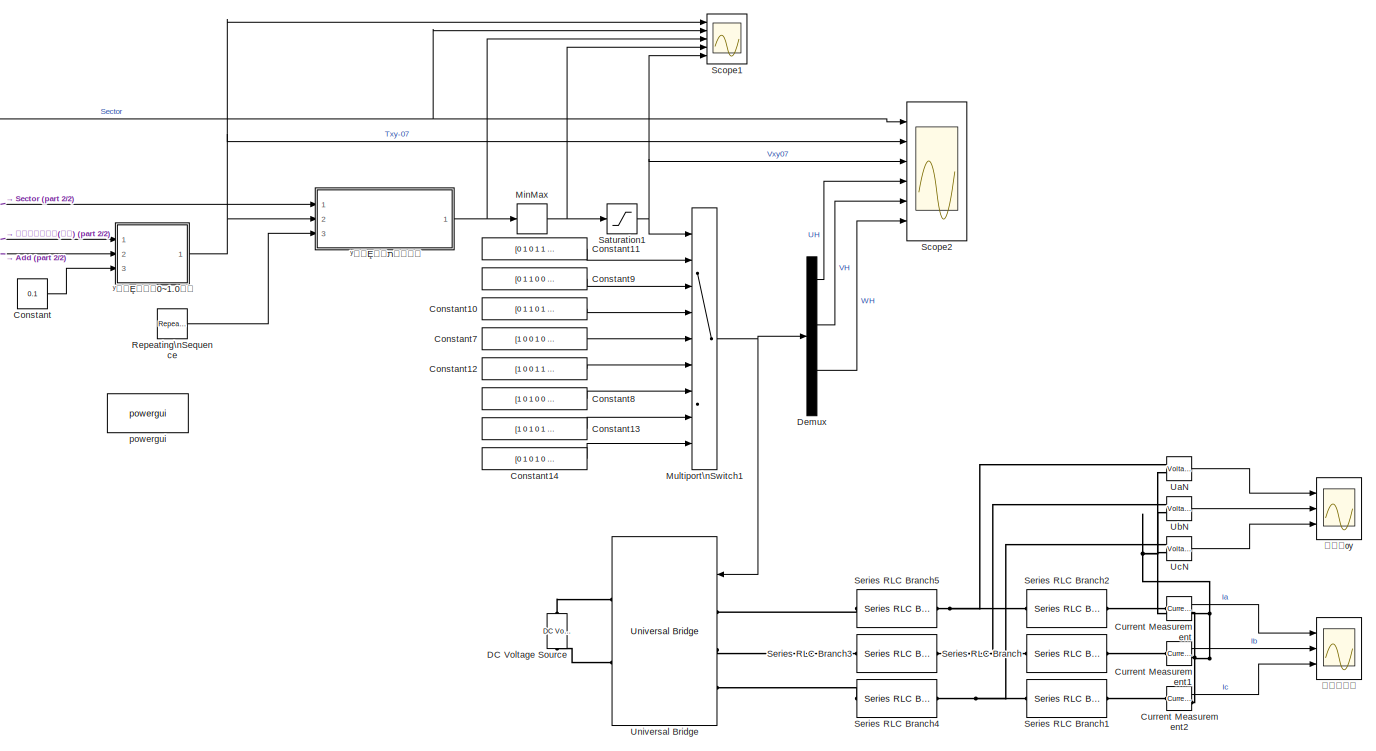
[diagram: root canvas - part 1/2, right side, full height]
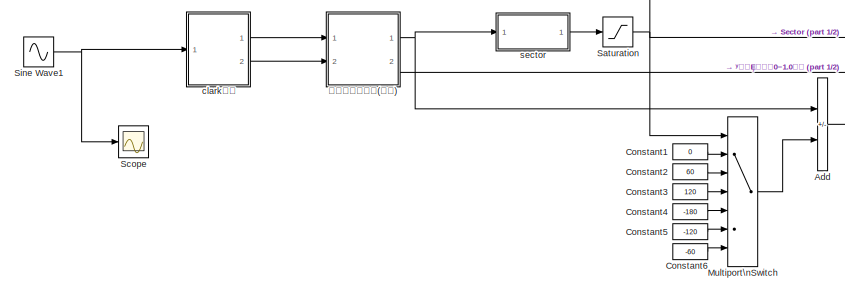
[diagram: root canvas - part 2/2, middle left region]
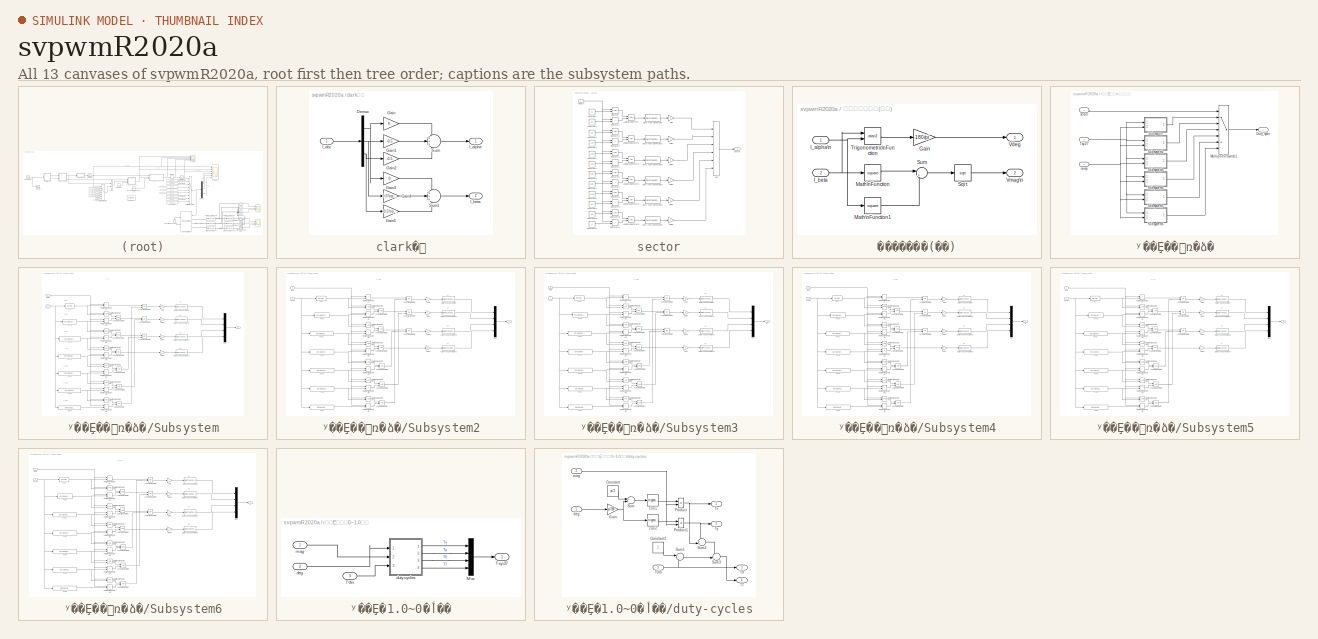
[diagram: thumbnail index - all 13 canvases of the model, root first then tree order]
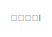
[diagram: ʸ��Ȩ��תռ�ձ�/Subsystem - part 1/2, top left region]
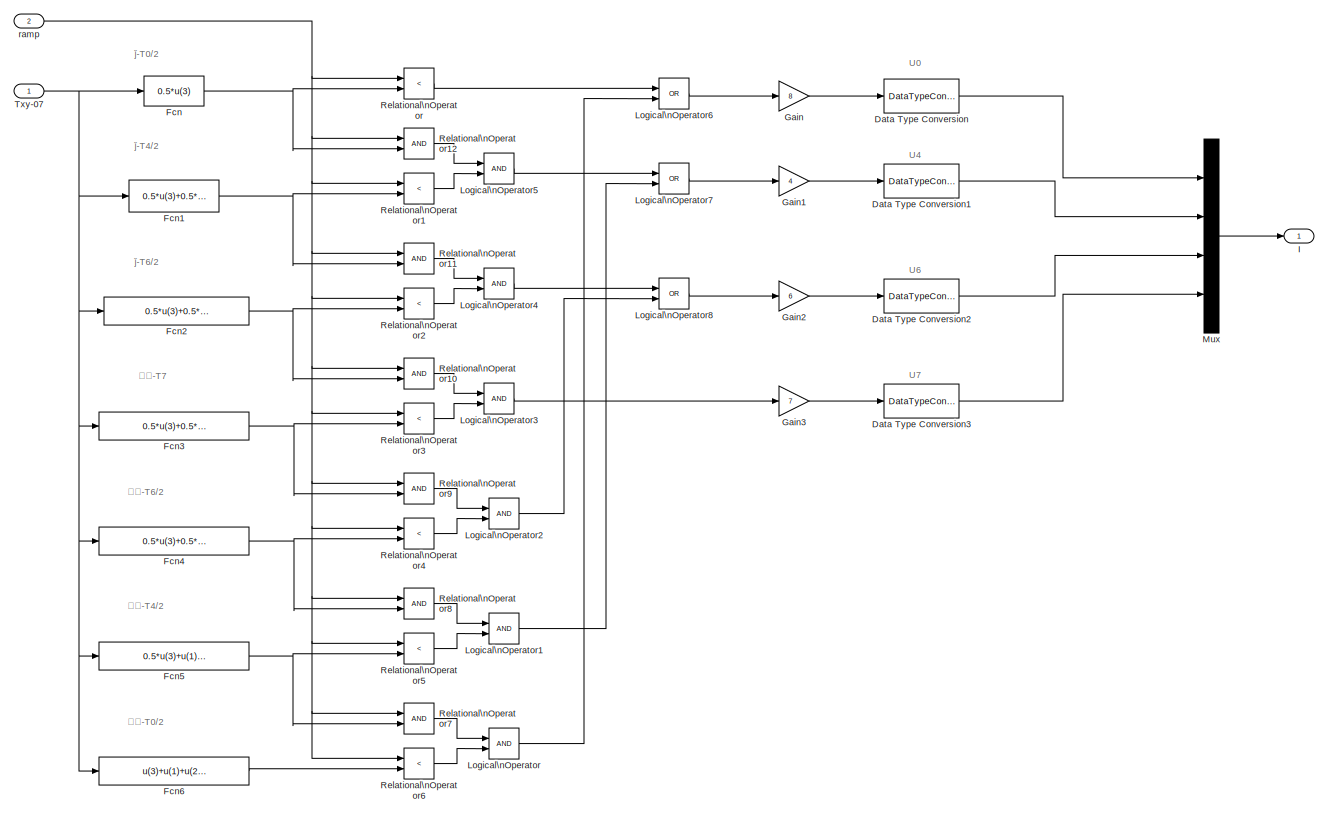
[diagram: ʸ��Ȩ��תռ�ձ�/Subsystem - part 2/2, most of the canvas]
MODEL svpwmR2020a
KIND model
BLOCK [Sum] Add
  IconShape = rectangular
  Inputs = +-
  Ports = [2, 1]
  SID = 154
BLOCK [Constant] Constant
  SID = 144
  Value = 0.1
BLOCK [Constant] Constant1
  SID = 148
  Value = 0
BLOCK [Constant] Constant10
  SID = 626
  SampleTime = -1
  Value = [0 1 1 0 1 0]
  VectorParams1D = off
BLOCK [Constant] Constant11
  SID = 627
  SampleTime = -1
  Value = [0 1 0 1 1 0]
  VectorParams1D = off
BLOCK [Constant] Constant12
  SID = 628
  SampleTime = -1
  Value = [1 0 0 1 1 0]
  VectorParams1D = off
BLOCK [Constant] Constant13
  SID = 629
  SampleTime = -1
  Value = [1 0 1 0 1 0]
  VectorParams1D = off
BLOCK [Constant] Constant14
  SID = 630
  SampleTime = -1
  Value = [0 1 0 1 0 1]
  VectorParams1D = off
BLOCK [Constant] Constant2
  SID = 149
  Value = 60
BLOCK [Constant] Constant3
  SID = 150
  Value = 120
BLOCK [Constant] Constant4
  SID = 151
  Value = -180
BLOCK [Constant] Constant5
  SID = 152
  Value = -120
BLOCK [Constant] Constant6
  SID = 153
  Value = -60
BLOCK [Constant] Constant7
  SID = 623
  SampleTime = -1
  Value = [1 0 0 1 0 1]
  VectorParams1D = off
BLOCK [Constant] Constant8
  SID = 624
  SampleTime = -1
  Value = [1 0 1 0 0 1]
  VectorParams1D = off
BLOCK [Constant] Constant9
  SID = 625
  SampleTime = -1
  Value = [0 1 1 0 0 1]
  VectorParams1D = off
BLOCK [Reference] Current Measurement  REF=powerlib/Measurements/Current Measurement
  OutputType = Complex
  PSBequivalent = 0
  PhasorSimulation = off
  Ports = [0, 1, 0, 0, 0, 1, 1]
  RTWMemSecDataConstants = Inherit from model
  RTWMemSecDataInternal = Inherit from model
  RTWMemSecDataParameters = Inherit from model
  RTWMemSecFuncExecute = Inherit from model
  RTWMemSecFuncInitTerm = Inherit from model
  SID = 717
  SourceBlock = powerlib/Measurements/Current Measurement
  SourceProductBaseCode = PS
  SourceType = Current Measurement
  UserDataPersistent = on
BLOCK [Reference] Current Measurement1  REF=powerlib/Measurements/Current Measurement
  OutputType = Complex
  PSBequivalent = 0
  PhasorSimulation = off
  Ports = [0, 1, 0, 0, 0, 1, 1]
  RTWMemSecDataConstants = Inherit from model
  RTWMemSecDataInternal = Inherit from model
  RTWMemSecDataParameters = Inherit from model
  RTWMemSecFuncExecute = Inherit from model
  RTWMemSecFuncInitTerm = Inherit from model
  SID = 718
  SourceBlock = powerlib/Measurements/Current Measurement
  SourceProductBaseCode = PS
  SourceType = Current Measurement
  UserDataPersistent = on
BLOCK [Reference] Current Measurement2  REF=powerlib/Measurements/Current Measurement
  OutputType = Complex
  PSBequivalent = 0
  PhasorSimulation = off
  Ports = [0, 1, 0, 0, 0, 1, 1]
  RTWMemSecDataConstants = Inherit from model
  RTWMemSecDataInternal = Inherit from model
  RTWMemSecDataParameters = Inherit from model
  RTWMemSecFuncExecute = Inherit from model
  RTWMemSecFuncInitTerm = Inherit from model
  SID = 719
  SourceBlock = powerlib/Measurements/Current Measurement
  SourceProductBaseCode = PS
  SourceType = Current Measurement
  UserDataPersistent = on
BLOCK [Reference] DC Voltage Source  REF=powerlib/Electrical\nSources/DC Voltage Source
  Amplitude = 100
  Measurements = Voltage
  NameLocation = right
  Ports = [0, 0, 0, 0, 0, 1, 1]
  RTWMemSecDataConstants = Inherit from model
  RTWMemSecDataInternal = Inherit from model
  RTWMemSecDataParameters = Inherit from model
  RTWMemSecFuncExecute = Inherit from model
  RTWMemSecFuncInitTerm = Inherit from model
  SID = 681
  SourceBlock = powerlib/Electrical\nSources/DC Voltage Source
  SourceProductBaseCode = PS
  SourceType = DC Voltage Source
BLOCK [Demux] Demux
  Outputs = 6
  Ports = [1, 6]
  SID = 678
BLOCK [MinMax] MinMax
  Function = max
  Ports = [1, 1]
  SID = 620
BLOCK [MultiPortSwitch] Multiport\nSwitch
  InputSameDT = off
  Inputs = 6
  Ports = [7, 1]
  SID = 145
  SaturateOnIntegerOverflow = off
BLOCK [MultiPortSwitch] Multiport\nSwitch1
  InputSameDT = off
  Inputs = 8
  Ports = [9, 1]
  SID = 622
  SaturateOnIntegerOverflow = off
BLOCK [Reference] Repeating\nSequence  REF=simulink/Sources/Repeating\nSequence
  Ports = [0, 1]
  RTWMemSecDataConstants = Inherit from model
  RTWMemSecDataInternal = Inherit from model
  RTWMemSecDataParameters = Inherit from model
  RTWMemSecFuncExecute = Inherit from model
  RTWMemSecFuncInitTerm = Inherit from model
  SID = 185
  SourceBlock = simulink/Sources/Repeating\nSequence
  SourceProductBaseCode = SL
  SourceType = Repeating table
  rep_seq_t = [0 1e-4]
  rep_seq_y = [0 1]
BLOCK [Saturate] Saturation
  LowerLimit = 1
  SID = 146
  UpperLimit = 6
BLOCK [Saturate] Saturation1
  LowerLimit = 1
  SID = 621
  UpperLimit = 8
BLOCK [Scope] Scope
  Floating = off
  NumInputPorts = 1
  Ports = [1]
  SID = 1
  ScopeSpecificationString = Simulink.scopes.TimeScopeBlockCfg('CurrentConfiguration', extmgr.ConfigurationSet(extmgr.Configuration('Core','General UI',true),extmgr.Configuration('Core','Source UI',true),extmgr.Configuration('Sources','WiredSimulink',true),extmgr.Configuration('Visuals','Time Domain',true,'SerializedDisplays',{struct('MinYLimReal','-0.5','MaxYLimReal','0.5','YLabelReal','','MinYLimMag','0.00000','MaxYLimMag',...<+1436ch>
BLOCK [Scope] Scope1
  Floating = off
  NumInputPorts = 5
  Ports = [5]
  SID = 631
  ScopeSpecificationString = Simulink.scopes.TimeScopeBlockCfg('CurrentConfiguration', extmgr.ConfigurationSet(extmgr.Configuration('Core','General UI',true),extmgr.Configuration('Core','Source UI',true),extmgr.Configuration('Sources','WiredSimulink',true,'DataLoggingVariableName','ScopeData1'),extmgr.Configuration('Visuals','Time Domain',true,'SerializedDisplays',{struct('MinYLimReal','-0.06495','MaxYLimReal','0.58457','YLab...<+5256ch>
BLOCK [Scope] Scope2
  Floating = off
  NumInputPorts = 6
  Ports = [6]
  SID = 676
  ScopeSpecificationString = Simulink.scopes.TimeScopeBlockCfg('CurrentConfiguration', extmgr.ConfigurationSet(extmgr.Configuration('Core','General UI',true),extmgr.Configuration('Core','Source UI',true),extmgr.Configuration('Sources','WiredSimulink',true,'DataLoggingVariableName','ScopeData1'),extmgr.Configuration('Visuals','Time Domain',true,'SerializedDisplays',{struct('MinYLimReal','0.375','MaxYLimReal','6.625','YLabelRea...<+5368ch>
BLOCK [Reference] Series RLC Branch  REF=powerlib/Elements/Series RLC Branch
  BranchType = R
  Capacitance = 1e-6
  Inductance = 1e-3
  InitialCurrent = 0
  InitialVoltage = 0
  LConnTagsString = __new0
  Measurements = Branch current
  Ports = [0, 0, 0, 0, 0, 1, 1]
  RConnTagsString = __new0
  Resistance = 2
  SID = 698
  SetiL0 = off
  Setx0 = off
  SourceBlock = powerlib/Elements/Series RLC Branch
  SourceProductBaseCode = PS
  SourceType = Series RLC Branch
BLOCK [Reference] Series RLC Branch1  REF=powerlib/Elements/Series RLC Branch
  BranchType = R
  Capacitance = 1e-6
  Inductance = 1e-3
  InitialCurrent = 0
  InitialVoltage = 0
  LConnTagsString = __new0
  Measurements = Branch current
  Ports = [0, 0, 0, 0, 0, 1, 1]
  RConnTagsString = __new0
  Resistance = 2
  SID = 699
  SetiL0 = off
  Setx0 = off
  SourceBlock = powerlib/Elements/Series RLC Branch
  SourceProductBaseCode = PS
  SourceType = Series RLC Branch
BLOCK [Reference] Series RLC Branch2  REF=powerlib/Elements/Series RLC Branch
  BranchType = R
  Capacitance = 1e-6
  Inductance = 1e-3
  InitialCurrent = 0
  InitialVoltage = 0
  LConnTagsString = __new0
  Measurements = Branch current
  Ports = [0, 0, 0, 0, 0, 1, 1]
  RConnTagsString = __new0
  Resistance = 2
  SID = 700
  SetiL0 = off
  Setx0 = off
  SourceBlock = powerlib/Elements/Series RLC Branch
  SourceProductBaseCode = PS
  SourceType = Series RLC Branch
BLOCK [Reference] Series RLC Branch3  REF=powerlib/Elements/Series RLC Branch
  BranchType = L
  Capacitance = 1e-6
  Inductance = 3e-3
  InitialCurrent = 0
  InitialVoltage = 0
  LConnTagsString = __new0
  Measurements = Branch current
  Ports = [0, 0, 0, 0, 0, 1, 1]
  RConnTagsString = __new0
  Resistance = 2
  SID = 707
  SetiL0 = off
  Setx0 = off
  SourceBlock = powerlib/Elements/Series RLC Branch
  SourceProductBaseCode = PS
  SourceType = Series RLC Branch
BLOCK [Reference] Series RLC Branch4  REF=powerlib/Elements/Series RLC Branch
  BranchType = L
  Capacitance = 1e-6
  Inductance = 3e-3
  InitialCurrent = 0
  InitialVoltage = 0
  LConnTagsString = __new0
  Measurements = Branch current
  Ports = [0, 0, 0, 0, 0, 1, 1]
  RConnTagsString = __new0
  Resistance = 2
  SID = 708
  SetiL0 = off
  Setx0 = off
  SourceBlock = powerlib/Elements/Series RLC Branch
  SourceProductBaseCode = PS
  SourceType = Series RLC Branch
BLOCK [Reference] Series RLC Branch5  REF=powerlib/Elements/Series RLC Branch
  BranchType = L
  Capacitance = 1e-6
  Inductance = 3e-3
  InitialCurrent = 0
  InitialVoltage = 0
  LConnTagsString = __new0
  Measurements = Branch current
  Ports = [0, 0, 0, 0, 0, 1, 1]
  RConnTagsString = __new0
  Resistance = 2
  SID = 709
  SetiL0 = off
  Setx0 = off
  SourceBlock = powerlib/Elements/Series RLC Branch
  SourceProductBaseCode = PS
  SourceType = Series RLC Branch
BLOCK [Sin] Sine Wave1
  Amplitude = 0.4
  Frequency = 2*pi*50
  Phase = [0 -2*pi/3 2*pi/3]
  Ports = [0, 1]
  SID = 3
  SampleTime = 1e-6
BLOCK [Reference] UaN  REF=powerlib/Measurements/Voltage Measurement
  OutputType = Complex
  PSBequivalent = 0
  PhasorSimulation = off
  Ports = [0, 1, 0, 0, 0, 2]
  RTWMemSecDataConstants = Inherit from model
  RTWMemSecDataInternal = Inherit from model
  RTWMemSecDataParameters = Inherit from model
  RTWMemSecFuncExecute = Inherit from model
  RTWMemSecFuncInitTerm = Inherit from model
  SID = 842
  SourceBlock = powerlib/Measurements/Voltage Measurement
  SourceProductBaseCode = PS
  SourceType = Voltage Measurement
  UserDataPersistent = on
BLOCK [Reference] UbN  REF=powerlib/Measurements/Voltage Measurement
  OutputType = Complex
  PSBequivalent = 0
  PhasorSimulation = off
  Ports = [0, 1, 0, 0, 0, 2]
  RTWMemSecDataConstants = Inherit from model
  RTWMemSecDataInternal = Inherit from model
  RTWMemSecDataParameters = Inherit from model
  RTWMemSecFuncExecute = Inherit from model
  RTWMemSecFuncInitTerm = Inherit from model
  SID = 845
  SourceBlock = powerlib/Measurements/Voltage Measurement
  SourceProductBaseCode = PS
  SourceType = Voltage Measurement
  UserDataPersistent = on
BLOCK [Reference] UcN  REF=powerlib/Measurements/Voltage Measurement
  OutputType = Complex
  PSBequivalent = 0
  PhasorSimulation = off
  Ports = [0, 1, 0, 0, 0, 2]
  RTWMemSecDataConstants = Inherit from model
  RTWMemSecDataInternal = Inherit from model
  RTWMemSecDataParameters = Inherit from model
  RTWMemSecFuncExecute = Inherit from model
  RTWMemSecFuncInitTerm = Inherit from model
  SID = 846
  SourceBlock = powerlib/Measurements/Voltage Measurement
  SourceProductBaseCode = PS
  SourceType = Voltage Measurement
  UserDataPersistent = on
BLOCK [Reference] Universal Bridge  REF=powerlib/Power\nElectronics/Universal Bridge
  Arms = 3
  Device = MOSFET / Diodes
  ForwardVoltage = 0
  ForwardVoltages = [ 150  150  ]
  GTOparameters = [ 10e-6 , 20e-6 ]
  IGBTparameters = [ 1e-6 , 2e-6 ]
  Lon = 0
  Measurements = All voltages and currents
  Measurements_2 = None
  Ports = [1, 0, 0, 0, 0, 3, 2]
  RTWMemSecDataConstants = Inherit from model
  RTWMemSecDataInternal = Inherit from model
  RTWMemSecDataParameters = Inherit from model
  RTWMemSecFuncExecute = Inherit from model
  RTWMemSecFuncInitTerm = Inherit from model
  Ron = 1e-3
  SID = 683
  SnubberCapacitance = inf
  SnubberResistance = 1e5
  SourceBlock = powerlib/Power\nElectronics/Universal Bridge
  SourceProductBaseCode = PS
  SourceType = Universal Bridge
  converterType = Rectifier
BLOCK [SubSystem] clark变换
  Ports = [1, 2]
  RequestExecContextInheritance = off
  SID = 30
BLOCK [Demux] clark变换/Demux
  Outputs = 3
  Ports = [1, 3]
  SID = 7
BLOCK [Gain] clark变换/Gain
  SID = 16
BLOCK [Gain] clark变换/Gain1
  Gain = -0.5
  SID = 17
BLOCK [Gain] clark变换/Gain2
  Gain = -0.5
  SID = 18
BLOCK [Gain] clark变换/Gain3
  Gain = 0
  SID = 19
BLOCK [Gain] clark变换/Gain4
  Gain = 0.5*sqrt(3)
  SID = 20
BLOCK [Gain] clark变换/Gain5
  Gain = -0.5*sqrt(3)
  SID = 21
BLOCK [Inport] clark变换/I_abc
  SID = 31
BLOCK [Outport] clark变换/I_alpha
  SID = 32
BLOCK [Outport] clark变换/I_beta
  Port = 2
  SID = 33
BLOCK [Sum] clark变换/Sum
  Inputs = +++
  Ports = [3, 1]
  SID = 22
BLOCK [Sum] clark变换/Sum1
  Inputs = +++
  Ports = [3, 1]
  SID = 23
BLOCK [Reference] powergui  REF=powerlib/powergui
  AutomaticDiscreteSolvers = off
  ContinueOnMaxIteration = off
  CurrentSourceSwitches = off
  DisableRonSwitches = off
  DisableSnubberDevices = off
  DisableVfSwitches = off
  DisplayEquations = off
  DisplayStyle = 1
  EnableUseOfTLC = off
  ErrMax = 1e-4
  ExternalGateDelay = off
  Frange = [0:2:500]
  FreqAxis = off
  FunctionMessages = off
  HookPort = off
  Interpol = off
  Iterations = 50
  MaxFrequency = 1000
  NonlinearTolerance = 1e-4
  Pbase = 100e6
  Ports = []
  Priority = 1
  RTWMemSecDataConstants = Inherit from model
  RTWMemSecDataInternal = Inherit from model
  RTWMemSecDataParameters = Inherit from model
  RTWMemSecFuncExecute = Inherit from model
  RTWMemSecFuncInitTerm = Inherit from model
  ResistiveCurrentMeasurement = off
  RestoreLinks = warning
  RmsSteady = 1
  SID = 720
  SPID = on
  SampleTime = 50e-6
  ShowGrid = off
  SolverType = Tustin/Backward Euler (TBE)
  SourceBlock = powerlib/powergui
  SourceProductBaseCode = PS
  SourceType = PSB option menu block
  StartTime = 0.0
  SwTol = 0
  Ts = 100
  UnitsV = kV
  UnitsW = MW
  Xlog = on
  Ylog = off
  ZoomFFT = off
  buscounter = 0
  cycles = 1
  display = off
  echomessages = off
  frequency = 60
  frequencyindice = 0
  frequencyindicesteady = 1
  fundamental = 60
  methode = off
  nMaxIteration = 100
  save = off
  structure = 0
  variable = ZData
  x0status = blocks
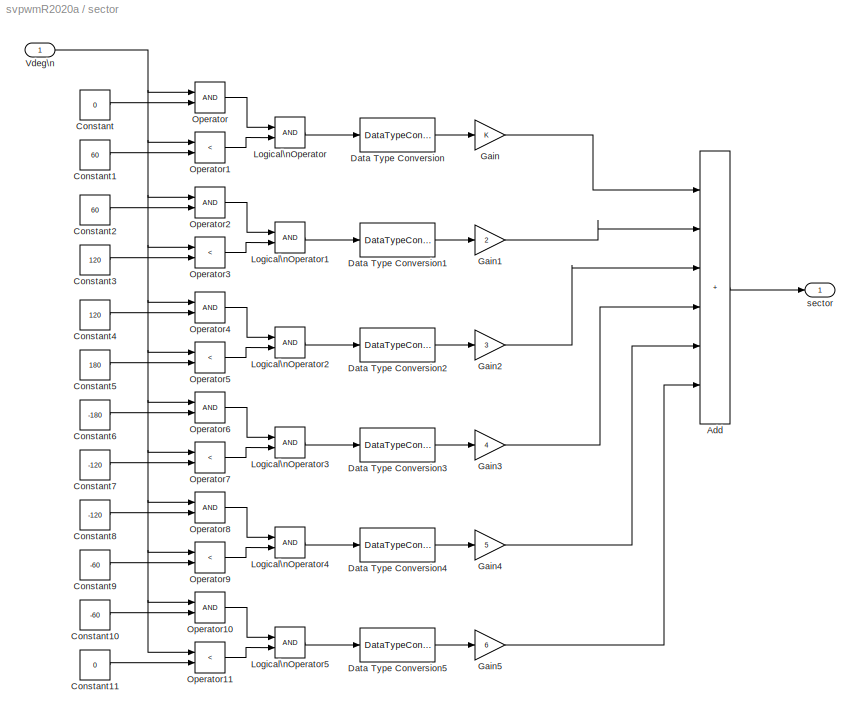
BLOCK [SubSystem] sector
  Ports = [1, 1]
  RequestExecContextInheritance = off
  SID = 116
BLOCK [Sum] sector/Add
  IconShape = rectangular
  Inputs = 6
  Ports = [6, 1]
  SID = 113
BLOCK [Constant] sector/Constant
  SID = 64
  Value = 0
BLOCK [Constant] sector/Constant1
  SID = 65
  Value = 60
BLOCK [Constant] sector/Constant10
  SID = 74
  Value = -60
BLOCK [Constant] sector/Constant11
  SID = 75
  Value = 0
BLOCK [Constant] sector/Constant2
  SID = 66
  Value = 60
BLOCK [Constant] sector/Constant3
  SID = 67
  Value = 120
BLOCK [Constant] sector/Constant4
  SID = 68
  Value = 120
BLOCK [Constant] sector/Constant5
  SID = 69
  Value = 180
BLOCK [Constant] sector/Constant6
  SID = 70
  Value = -180
BLOCK [Constant] sector/Constant7
  SID = 71
  Value = -120
BLOCK [Constant] sector/Constant8
  SID = 72
  Value = -120
BLOCK [Constant] sector/Constant9
  SID = 73
  Value = -60
BLOCK [DataTypeConversion] sector/Data Type Conversion
  RndMeth = Floor
  SID = 85
  SaturateOnIntegerOverflow = off
BLOCK [DataTypeConversion] sector/Data Type Conversion1
  RndMeth = Floor
  SID = 87
  SaturateOnIntegerOverflow = off
BLOCK [DataTypeConversion] sector/Data Type Conversion2
  RndMeth = Floor
  SID = 92
  SaturateOnIntegerOverflow = off
BLOCK [DataTypeConversion] sector/Data Type Conversion3
  RndMeth = Floor
  SID = 97
  SaturateOnIntegerOverflow = off
BLOCK [DataTypeConversion] sector/Data Type Conversion4
  RndMeth = Floor
  SID = 102
  SaturateOnIntegerOverflow = off
BLOCK [DataTypeConversion] sector/Data Type Conversion5
  RndMeth = Floor
  SID = 107
  SaturateOnIntegerOverflow = off
BLOCK [Gain] sector/Gain
  SID = 86
BLOCK [Gain] sector/Gain1
  Gain = 2
  SID = 88
BLOCK [Gain] sector/Gain2
  Gain = 3
  SID = 93
BLOCK [Gain] sector/Gain3
  Gain = 4
  SID = 98
BLOCK [Gain] sector/Gain4
  Gain = 5
  SID = 103
BLOCK [Gain] sector/Gain5
  Gain = 6
  SID = 108
BLOCK [Logic] sector/Logical\nOperator
  AllPortsSameDT = off
  OutDataTypeStr = boolean
  Ports = [2, 1]
  SID = 78
BLOCK [Logic] sector/Logical\nOperator1
  AllPortsSameDT = off
  OutDataTypeStr = boolean
  Ports = [2, 1]
  SID = 89
BLOCK [Logic] sector/Logical\nOperator2
  AllPortsSameDT = off
  OutDataTypeStr = boolean
  Ports = [2, 1]
  SID = 94
BLOCK [Logic] sector/Logical\nOperator3
  AllPortsSameDT = off
  OutDataTypeStr = boolean
  Ports = [2, 1]
  SID = 99
BLOCK [Logic] sector/Logical\nOperator4
  AllPortsSameDT = off
  OutDataTypeStr = boolean
  Ports = [2, 1]
  SID = 104
BLOCK [Logic] sector/Logical\nOperator5
  AllPortsSameDT = off
  OutDataTypeStr = boolean
  Ports = [2, 1]
  SID = 109
BLOCK [RelationalOperator] sector/Operator
  InputSameDT = off
  OutDataTypeStr = boolean
  Ports = [2, 1]
  RndMeth = Simplest
  SID = 76
BLOCK [RelationalOperator] sector/Operator1
  InputSameDT = off
  Operator = <
  OutDataTypeStr = boolean
  Ports = [2, 1]
  RndMeth = Simplest
  SID = 79
BLOCK [RelationalOperator] sector/Operator10
  InputSameDT = off
  OutDataTypeStr = boolean
  Ports = [2, 1]
  RndMeth = Simplest
  SID = 110
BLOCK [RelationalOperator] sector/Operator11
  InputSameDT = off
  Operator = <
  OutDataTypeStr = boolean
  Ports = [2, 1]
  RndMeth = Simplest
  SID = 111
BLOCK [RelationalOperator] sector/Operator2
  InputSameDT = off
  OutDataTypeStr = boolean
  Ports = [2, 1]
  RndMeth = Simplest
  SID = 90
BLOCK [RelationalOperator] sector/Operator3
  InputSameDT = off
  Operator = <
  OutDataTypeStr = boolean
  Ports = [2, 1]
  RndMeth = Simplest
  SID = 91
BLOCK [RelationalOperator] sector/Operator4
  InputSameDT = off
  OutDataTypeStr = boolean
  Ports = [2, 1]
  RndMeth = Simplest
  SID = 95
BLOCK [RelationalOperator] sector/Operator5
  InputSameDT = off
  Operator = <
  OutDataTypeStr = boolean
  Ports = [2, 1]
  RndMeth = Simplest
  SID = 96
BLOCK [RelationalOperator] sector/Operator6
  InputSameDT = off
  OutDataTypeStr = boolean
  Ports = [2, 1]
  RndMeth = Simplest
  SID = 100
BLOCK [RelationalOperator] sector/Operator7
  InputSameDT = off
  Operator = <
  OutDataTypeStr = boolean
  Ports = [2, 1]
  RndMeth = Simplest
  SID = 101
BLOCK [RelationalOperator] sector/Operator8
  InputSameDT = off
  OutDataTypeStr = boolean
  Ports = [2, 1]
  RndMeth = Simplest
  SID = 105
BLOCK [RelationalOperator] sector/Operator9
  InputSameDT = off
  Operator = <
  OutDataTypeStr = boolean
  Ports = [2, 1]
  RndMeth = Simplest
  SID = 106
BLOCK [Inport] sector/Vdeg\n
  SID = 117
BLOCK [Outport] sector/sector
  SID = 118
BLOCK [SubSystem] 极坐标ρ(¦È)
  Ports = [2, 2]
  RequestExecContextInheritance = off
  SID = 59
BLOCK [Gain] 极坐标ρ(¦È)/Gain
  Gain = 180/pi
  SID = 55
BLOCK [Inport] 极坐标ρ(¦È)/I_alpha\n
  SID = 60
BLOCK [Inport] 极坐标ρ(¦È)/I_beta
  Port = 2
  SID = 61
BLOCK [Math] 极坐标ρ(¦È)/Math\nFunction
  Operator = square
  Ports = [1, 1]
  SID = 50
  SignedPower = on
BLOCK [Math] 极坐标ρ(¦È)/Math\nFunction1
  Operator = square
  Ports = [1, 1]
  SID = 51
  SignedPower = on
BLOCK [Sqrt] 极坐标ρ(¦È)/Sqrt
  SID = 54
BLOCK [Sum] 极坐标ρ(¦È)/Sum
  Inputs = |++
  Ports = [2, 1]
  SID = 52
BLOCK [Trigonometry] 极坐标ρ(¦È)/Trigonometric\nFunction
  Operator = atan2
  Ports = [2, 1]
  SID = 43
BLOCK [Outport] 极坐标ρ(¦È)/Vdeg
  SID = 62
BLOCK [Outport] 极坐标ρ(¦È)/Vmag\n
  Port = 2
  SID = 63
BLOCK [SubSystem] 矢量权重（0~1.0£<copyright redacted>
  Ports = [3, 1]
  RequestExecContextInheritance = off
  SID = 215
BLOCK [Mux] 矢量权重（0~1.0£<copyright redacted>
  DisplayOption = bar
  Ports = [4, 1]
  SID = 207
BLOCK [Inport] 矢量权重（0~1.0£<copyright redacted>\n
  Port = 3
  SID = 217
BLOCK [Outport] 矢量权重（0~1.0£<copyright redacted>
  SID = 219
BLOCK [Inport] 矢量权重（0~1.0£<copyright redacted>
  Port = 2
  SID = 218
BLOCK [SubSystem] 矢量权重（0~1.0£<copyright redacted>
  Ports = [3, 4]
  RequestExecContextInheritance = off
  SID = 130
BLOCK [Constant] 矢量权重（0~1.0£<copyright redacted>
  SID = 121
  Value = pi/3
BLOCK [Constant] 矢量权重（0~1.0£<copyright redacted>
  SID = 137
BLOCK [Gain] 矢量权重（0~1.0£<copyright redacted>
  Gain = pi/180
  SID = 120
BLOCK [Product] 矢量权重（0~1.0£<copyright redacted>
  Ports = [2, 1]
  SID = 126
BLOCK [Product] 矢量权重（0~1.0£<copyright redacted>
  Ports = [2, 1]
  SID = 127
BLOCK [Sum] 矢量权重（0~1.0£<copyright redacted>
  Inputs = +|-
  Ports = [2, 1]
  SID = 122
BLOCK [Sum] 矢量权重（0~1.0£<copyright redacted>
  Inputs = +-
  Ports = [2, 1]
  SID = 139
BLOCK [Sum] 矢量权重（0~1.0£<copyright redacted>
  Inputs = ++|
  Ports = [2, 1]
  SID = 140
BLOCK [Sum] 矢量权重（0~1.0£<copyright redacted>
  Inputs = -+|
  Ports = [2, 1]
  SID = 141
BLOCK [Outport] 矢量权重（0~1.0£<copyright redacted>
  Port = 3
  SID = 143
BLOCK [Inport] 矢量权重（0~1.0£<copyright redacted>\n
  Port = 3
  SID = 136
BLOCK [Outport] 矢量权重（0~1.0£<copyright redacted>
  Port = 4
  SID = 142
BLOCK [Outport] 矢量权重（0~1.0£<copyright redacted>
  SID = 133
BLOCK [Outport] 矢量权重（0~1.0£<copyright redacted>
  Port = 2
  SID = 134
BLOCK [Trigonometry] 矢量权重（0~1.0£<copyright redacted>
  Ports = [1, 1]
  SID = 124
BLOCK [Trigonometry] 矢量权重（0~1.0£<copyright redacted>
  Ports = [1, 1]
  SID = 125
BLOCK [Inport] 矢量权重（0~1.0£<copyright redacted>
  SID = 135
BLOCK [Inport] 矢量权重（0~1.0£<copyright redacted>
  Port = 2
  SID = 132
BLOCK [Inport] 矢量权重（0~1.0£<copyright redacted>
  SID = 216
BLOCK [SubSystem] 矢量权重转占空比
  Ports = [3, 1]
  RequestExecContextInheritance = off
  SID = 614
BLOCK [Outport] 矢量权重转占空比/Duty_cycle
  SID = 618
BLOCK [MultiPortSwitch] 矢量权重转占空比/Multiport\nSwitch1
  InputSameDT = off
  Inputs = 6
  Ports = [7, 1]
  SID = 611
  SaturateOnIntegerOverflow = off
BLOCK [SubSystem] 矢量权重转占空比/Subsystem
  Ports = [2, 1]
  RequestExecContextInheritance = off
  SID = 176
BLOCK [DataTypeConversion] 矢量权重转占空比/Subsystem/Data Type Conversion
  OutDataTypeStr = double
  RndMeth = Floor
  SID = 268
  SaturateOnIntegerOverflow = off
BLOCK [DataTypeConversion] 矢量权重转占空比/Subsystem/Data Type Conversion1
  OutDataTypeStr = double
  RndMeth = Floor
  SID = 269
  SaturateOnIntegerOverflow = off
BLOCK [DataTypeConversion] 矢量权重转占空比/Subsystem/Data Type Conversion2
  OutDataTypeStr = double
  RndMeth = Floor
  SID = 270
  SaturateOnIntegerOverflow = off
BLOCK [DataTypeConversion] 矢量权重转占空比/Subsystem/Data Type Conversion3
  OutDataTypeStr = double
  RndMeth = Floor
  SID = 271
  SaturateOnIntegerOverflow = off
BLOCK [Fcn] 矢量权重转占空比/Subsystem/Fcn
  Expr = 0.5*u(3)
  SID = 723
BLOCK [Fcn] 矢量权重转占空比/Subsystem/Fcn1
  Expr = 0.5*u(3)+0.5*u(1)
  SID = 724
BLOCK [Fcn] 矢量权重转占空比/Subsystem/Fcn2
  Expr = 0.5*u(3)+0.5*u(1)+0.5*u(2)
  SID = 725
BLOCK [Fcn] 矢量权重转占空比/Subsystem/Fcn3
  Expr = 0.5*u(3)+0.5*u(1)+0.5*u(2)+u(4)
  SID = 726
BLOCK [Fcn] 矢量权重转占空比/Subsystem/Fcn4
  Expr = 0.5*u(3)+0.5*u(1)+u(2)+u(4)
  SID = 727
BLOCK [Fcn] 矢量权重转占空比/Subsystem/Fcn5
  Expr = 0.5*u(3)+u(1)+u(2)+u(4)
  SID = 728
BLOCK [Fcn] 矢量权重转占空比/Subsystem/Fcn6
  Expr = u(3)+u(1)+u(2)+u(4)
  SID = 729
BLOCK [Gain] 矢量权重转占空比/Subsystem/Gain
  Gain = 8
  SID = 263
BLOCK [Gain] 矢量权重转占空比/Subsystem/Gain1
  Gain = 4
  SID = 264
BLOCK [Gain] 矢量权重转占空比/Subsystem/Gain2
  Gain = 6
  SID = 265
BLOCK [Gain] 矢量权重转占空比/Subsystem/Gain3
  Gain = 7
  SID = 266
BLOCK [Outport] 矢量权重转占空比/Subsystem/I
  SID = 273
BLOCK [Logic] 矢量权重转占空比/Subsystem/Logical\nOperator
  AllPortsSameDT = off
  OutDataTypeStr = boolean
  Ports = [2, 1]
  SID = 247
BLOCK [Logic] 矢量权重转占空比/Subsystem/Logical\nOperator1
  AllPortsSameDT = off
  OutDataTypeStr = boolean
  Ports = [2, 1]
  SID = 248
BLOCK [Logic] 矢量权重转占空比/Subsystem/Logical\nOperator2
  AllPortsSameDT = off
  OutDataTypeStr = boolean
  Ports = [2, 1]
  SID = 249
BLOCK [Logic] 矢量权重转占空比/Subsystem/Logical\nOperator3
  AllPortsSameDT = off
  OutDataTypeStr = boolean
  Ports = [2, 1]
  SID = 250
BLOCK [Logic] 矢量权重转占空比/Subsystem/Logical\nOperator4
  AllPortsSameDT = off
  OutDataTypeStr = boolean
  Ports = [2, 1]
  SID = 251
BLOCK [Logic] 矢量权重转占空比/Subsystem/Logical\nOperator5
  AllPortsSameDT = off
  OutDataTypeStr = boolean
  Ports = [2, 1]
  SID = 252
BLOCK [Logic] 矢量权重转占空比/Subsystem/Logical\nOperator6
  AllPortsSameDT = off
  Operator = OR
  OutDataTypeStr = boolean
  Ports = [2, 1]
  SID = 260
BLOCK [Logic] 矢量权重转占空比/Subsystem/Logical\nOperator7
  AllPortsSameDT = off
  Operator = OR
  OutDataTypeStr = boolean
  Ports = [2, 1]
  SID = 261
BLOCK [Logic] 矢量权重转占空比/Subsystem/Logical\nOperator8
  AllPortsSameDT = off
  Operator = OR
  OutDataTypeStr = boolean
  Ports = [2, 1]
  SID = 262
BLOCK [Mux] 矢量权重转占空比/Subsystem/Mux
  DisplayOption = bar
  Ports = [4, 1]
  SID = 272
BLOCK [RelationalOperator] 矢量权重转占空比/Subsystem/Relational\nOperator
  InputSameDT = off
  Operator = <
  OutDataTypeStr = boolean
  Ports = [2, 1]
  RndMeth = Simplest
  SID = 230
BLOCK [RelationalOperator] 矢量权重转占空比/Subsystem/Relational\nOperator1
  InputSameDT = off
  Operator = <
  OutDataTypeStr = boolean
  Ports = [2, 1]
  RndMeth = Simplest
  SID = 231
BLOCK [RelationalOperator] 矢量权重转占空比/Subsystem/Relational\nOperator10
  InputSameDT = off
  OutDataTypeStr = boolean
  Ports = [2, 1]
  RndMeth = Simplest
  SID = 241
BLOCK [RelationalOperator] 矢量权重转占空比/Subsystem/Relational\nOperator11
  InputSameDT = off
  OutDataTypeStr = boolean
  Ports = [2, 1]
  RndMeth = Simplest
  SID = 242
BLOCK [RelationalOperator] 矢量权重转占空比/Subsystem/Relational\nOperator12
  InputSameDT = off
  OutDataTypeStr = boolean
  Ports = [2, 1]
  RndMeth = Simplest
  SID = 243
BLOCK [RelationalOperator] 矢量权重转占空比/Subsystem/Relational\nOperator2
  InputSameDT = off
  Operator = <
  OutDataTypeStr = boolean
  Ports = [2, 1]
  RndMeth = Simplest
  SID = 232
BLOCK [RelationalOperator] 矢量权重转占空比/Subsystem/Relational\nOperator3
  InputSameDT = off
  Operator = <
  OutDataTypeStr = boolean
  Ports = [2, 1]
  RndMeth = Simplest
  SID = 233
BLOCK [RelationalOperator] 矢量权重转占空比/Subsystem/Relational\nOperator4
  InputSameDT = off
  Operator = <
  OutDataTypeStr = boolean
  Ports = [2, 1]
  RndMeth = Simplest
  SID = 234
BLOCK [RelationalOperator] 矢量权重转占空比/Subsystem/Relational\nOperator5
  InputSameDT = off
  Operator = <
  OutDataTypeStr = boolean
  Ports = [2, 1]
  RndMeth = Simplest
  SID = 235
BLOCK [RelationalOperator] 矢量权重转占空比/Subsystem/Relational\nOperator6
  InputSameDT = off
  Operator = <
  OutDataTypeStr = boolean
  Ports = [2, 1]
  RndMeth = Simplest
  SID = 236
BLOCK [RelationalOperator] 矢量权重转占空比/Subsystem/Relational\nOperator7
  InputSameDT = off
  OutDataTypeStr = boolean
  Ports = [2, 1]
  RndMeth = Simplest
  SID = 237
BLOCK [RelationalOperator] 矢量权重转占空比/Subsystem/Relational\nOperator8
  InputSameDT = off
  OutDataTypeStr = boolean
  Ports = [2, 1]
  RndMeth = Simplest
  SID = 238
BLOCK [RelationalOperator] 矢量权重转占空比/Subsystem/Relational\nOperator9
  InputSameDT = off
  OutDataTypeStr = boolean
  Ports = [2, 1]
  RndMeth = Simplest
  SID = 239
BLOCK [Inport] 矢量权重转占空比/Subsystem/Txy-07
  SID = 214
BLOCK [Inport] 矢量权重转占空比/Subsystem/ramp
  Port = 2
  SID = 229
BLOCK [SubSystem] 矢量权重转占空比/Subsystem2
  Ports = [2, 1]
  RequestExecContextInheritance = off
  SID = 400
BLOCK [DataTypeConversion] 矢量权重转占空比/Subsystem2/Data Type Conversion
  OutDataTypeStr = double
  RndMeth = Floor
  SID = 403
  SaturateOnIntegerOverflow = off
BLOCK [DataTypeConversion] 矢量权重转占空比/Subsystem2/Data Type Conversion1
  OutDataTypeStr = double
  RndMeth = Floor
  SID = 404
  SaturateOnIntegerOverflow = off
BLOCK [DataTypeConversion] 矢量权重转占空比/Subsystem2/Data Type Conversion2
  OutDataTypeStr = double
  RndMeth = Floor
  SID = 405
  SaturateOnIntegerOverflow = off
BLOCK [DataTypeConversion] 矢量权重转占空比/Subsystem2/Data Type Conversion3
  OutDataTypeStr = double
  RndMeth = Floor
  SID = 406
  SaturateOnIntegerOverflow = off
BLOCK [Fcn] 矢量权重转占空比/Subsystem2/Fcn
  Expr = 0.5*u(3)
  SID = 730
BLOCK [Fcn] 矢量权重转占空比/Subsystem2/Fcn1
  Expr = 0.5*u(3)+0.5*u(1)
  SID = 731
BLOCK [Fcn] 矢量权重转占空比/Subsystem2/Fcn2
  Expr = 0.5*u(3)+0.5*u(1)+0.5*u(2)
  SID = 732
BLOCK [Fcn] 矢量权重转占空比/Subsystem2/Fcn3
  Expr = 0.5*u(3)+0.5*u(1)+0.5*u(2)+u(4)
  SID = 733
BLOCK [Fcn] 矢量权重转占空比/Subsystem2/Fcn4
  Expr = 0.5*u(3)+0.5*u(1)+u(2)+u(4)
  SID = 734
BLOCK [Fcn] 矢量权重转占空比/Subsystem2/Fcn5
  Expr = 0.5*u(3)+u(1)+u(2)+u(4)
  SID = 735
BLOCK [Fcn] 矢量权重转占空比/Subsystem2/Fcn6
  Expr = u(3)+u(1)+u(2)+u(4)
  SID = 736
BLOCK [Gain] 矢量权重转占空比/Subsystem2/Gain
  Gain = 7
  SID = 407
BLOCK [Gain] 矢量权重转占空比/Subsystem2/Gain1
  Gain = 6
  SID = 408
BLOCK [Gain] 矢量权重转占空比/Subsystem2/Gain2
  Gain = 2
  SID = 409
BLOCK [Gain] 矢量权重转占空比/Subsystem2/Gain3
  Gain = 8
  SID = 410
BLOCK [Outport] 矢量权重转占空比/Subsystem2/II
  SID = 441
BLOCK [Logic] 矢量权重转占空比/Subsystem2/Logical\nOperator
  AllPortsSameDT = off
  OutDataTypeStr = boolean
  Ports = [2, 1]
  SID = 418
BLOCK [Logic] 矢量权重转占空比/Subsystem2/Logical\nOperator1
  AllPortsSameDT = off
  OutDataTypeStr = boolean
  Ports = [2, 1]
  SID = 419
BLOCK [Logic] 矢量权重转占空比/Subsystem2/Logical\nOperator2
  AllPortsSameDT = off
  OutDataTypeStr = boolean
  Ports = [2, 1]
  SID = 420
BLOCK [Logic] 矢量权重转占空比/Subsystem2/Logical\nOperator3
  AllPortsSameDT = off
  OutDataTypeStr = boolean
  Ports = [2, 1]
  SID = 421
BLOCK [Logic] 矢量权重转占空比/Subsystem2/Logical\nOperator4
  AllPortsSameDT = off
  OutDataTypeStr = boolean
  Ports = [2, 1]
  SID = 422
BLOCK [Logic] 矢量权重转占空比/Subsystem2/Logical\nOperator5
  AllPortsSameDT = off
  OutDataTypeStr = boolean
  Ports = [2, 1]
  SID = 423
BLOCK [Logic] 矢量权重转占空比/Subsystem2/Logical\nOperator6
  AllPortsSameDT = off
  Operator = OR
  OutDataTypeStr = boolean
  Ports = [2, 1]
  SID = 424
BLOCK [Logic] 矢量权重转占空比/Subsystem2/Logical\nOperator7
  AllPortsSameDT = off
  Operator = OR
  OutDataTypeStr = boolean
  Ports = [2, 1]
  SID = 425
BLOCK [Logic] 矢量权重转占空比/Subsystem2/Logical\nOperator8
  AllPortsSameDT = off
  Operator = OR
  OutDataTypeStr = boolean
  Ports = [2, 1]
  SID = 426
BLOCK [Mux] 矢量权重转占空比/Subsystem2/Mux
  DisplayOption = bar
  Ports = [4, 1]
  SID = 427
BLOCK [RelationalOperator] 矢量权重转占空比/Subsystem2/Relational\nOperator
  InputSameDT = off
  Operator = <
  OutDataTypeStr = boolean
  Ports = [2, 1]
  RndMeth = Simplest
  SID = 428
BLOCK [RelationalOperator] 矢量权重转占空比/Subsystem2/Relational\nOperator1
  InputSameDT = off
  Operator = <
  OutDataTypeStr = boolean
  Ports = [2, 1]
  RndMeth = Simplest
  SID = 429
BLOCK [RelationalOperator] 矢量权重转占空比/Subsystem2/Relational\nOperator10
  InputSameDT = off
  OutDataTypeStr = boolean
  Ports = [2, 1]
  RndMeth = Simplest
  SID = 430
BLOCK [RelationalOperator] 矢量权重转占空比/Subsystem2/Relational\nOperator11
  InputSameDT = off
  OutDataTypeStr = boolean
  Ports = [2, 1]
  RndMeth = Simplest
  SID = 431
BLOCK [RelationalOperator] 矢量权重转占空比/Subsystem2/Relational\nOperator12
  InputSameDT = off
  OutDataTypeStr = boolean
  Ports = [2, 1]
  RndMeth = Simplest
  SID = 432
BLOCK [RelationalOperator] 矢量权重转占空比/Subsystem2/Relational\nOperator2
  InputSameDT = off
  Operator = <
  OutDataTypeStr = boolean
  Ports = [2, 1]
  RndMeth = Simplest
  SID = 433
BLOCK [RelationalOperator] 矢量权重转占空比/Subsystem2/Relational\nOperator3
  InputSameDT = off
  Operator = <
  OutDataTypeStr = boolean
  Ports = [2, 1]
  RndMeth = Simplest
  SID = 434
BLOCK [RelationalOperator] 矢量权重转占空比/Subsystem2/Relational\nOperator4
  InputSameDT = off
  Operator = <
  OutDataTypeStr = boolean
  Ports = [2, 1]
  RndMeth = Simplest
  SID = 435
BLOCK [RelationalOperator] 矢量权重转占空比/Subsystem2/Relational\nOperator5
  InputSameDT = off
  Operator = <
  OutDataTypeStr = boolean
  Ports = [2, 1]
  RndMeth = Simplest
  SID = 436
BLOCK [RelationalOperator] 矢量权重转占空比/Subsystem2/Relational\nOperator6
  InputSameDT = off
  Operator = <
  OutDataTypeStr = boolean
  Ports = [2, 1]
  RndMeth = Simplest
  SID = 437
BLOCK [RelationalOperator] 矢量权重转占空比/Subsystem2/Relational\nOperator7
  InputSameDT = off
  OutDataTypeStr = boolean
  Ports = [2, 1]
  RndMeth = Simplest
  SID = 438
BLOCK [RelationalOperator] 矢量权重转占空比/Subsystem2/Relational\nOperator8
  InputSameDT = off
  OutDataTypeStr = boolean
  Ports = [2, 1]
  RndMeth = Simplest
  SID = 439
BLOCK [RelationalOperator] 矢量权重转占空比/Subsystem2/Relational\nOperator9
  InputSameDT = off
  OutDataTypeStr = boolean
  Ports = [2, 1]
  RndMeth = Simplest
  SID = 440
BLOCK [Inport] 矢量权重转占空比/Subsystem2/Txy-07
  SID = 401
BLOCK [Inport] 矢量权重转占空比/Subsystem2/ramp
  Port = 2
  SID = 402
BLOCK [SubSystem] 矢量权重转占空比/Subsystem3
  Ports = [2, 1]
  RequestExecContextInheritance = off
  SID = 442
BLOCK [DataTypeConversion] 矢量权重转占空比/Subsystem3/Data Type Conversion
  OutDataTypeStr = double
  RndMeth = Floor
  SID = 445
  SaturateOnIntegerOverflow = off
BLOCK [DataTypeConversion] 矢量权重转占空比/Subsystem3/Data Type Conversion1
  OutDataTypeStr = double
  RndMeth = Floor
  SID = 446
  SaturateOnIntegerOverflow = off
BLOCK [DataTypeConversion] 矢量权重转占空比/Subsystem3/Data Type Conversion2
  OutDataTypeStr = double
  RndMeth = Floor
  SID = 447
  SaturateOnIntegerOverflow = off
BLOCK [DataTypeConversion] 矢量权重转占空比/Subsystem3/Data Type Conversion3
  OutDataTypeStr = double
  RndMeth = Floor
  SID = 448
  SaturateOnIntegerOverflow = off
BLOCK [Fcn] 矢量权重转占空比/Subsystem3/Fcn
  Expr = 0.5*u(3)
  SID = 739
BLOCK [Fcn] 矢量权重转占空比/Subsystem3/Fcn1
  Expr = 0.5*u(3)+0.5*u(1)
  SID = 740
BLOCK [Fcn] 矢量权重转占空比/Subsystem3/Fcn2
  Expr = 0.5*u(3)+0.5*u(1)+0.5*u(2)
  SID = 741
BLOCK [Fcn] 矢量权重转占空比/Subsystem3/Fcn3
  Expr = 0.5*u(3)+0.5*u(1)+0.5*u(2)+u(4)
  SID = 742
BLOCK [Fcn] 矢量权重转占空比/Subsystem3/Fcn4
  Expr = 0.5*u(3)+0.5*u(1)+u(2)+u(4)
  SID = 743
BLOCK [Fcn] 矢量权重转占空比/Subsystem3/Fcn5
  Expr = 0.5*u(3)+u(1)+u(2)+u(4)
  SID = 744
BLOCK [Fcn] 矢量权重转占空比/Subsystem3/Fcn6
  Expr = u(3)+u(1)+u(2)+u(4)
  SID = 745
BLOCK [Gain] 矢量权重转占空比/Subsystem3/Gain
  Gain = 8
  SID = 449
BLOCK [Gain] 矢量权重转占空比/Subsystem3/Gain1
  Gain = 2
  SID = 450
BLOCK [Gain] 矢量权重转占空比/Subsystem3/Gain2
  Gain = 3
  SID = 451
BLOCK [Gain] 矢量权重转占空比/Subsystem3/Gain3
  Gain = 7
  SID = 452
BLOCK [Outport] 矢量权重转占空比/Subsystem3/III
  SID = 483
BLOCK [Logic] 矢量权重转占空比/Subsystem3/Logical\nOperator
  AllPortsSameDT = off
  OutDataTypeStr = boolean
  Ports = [2, 1]
  SID = 460
BLOCK [Logic] 矢量权重转占空比/Subsystem3/Logical\nOperator1
  AllPortsSameDT = off
  OutDataTypeStr = boolean
  Ports = [2, 1]
  SID = 461
BLOCK [Logic] 矢量权重转占空比/Subsystem3/Logical\nOperator2
  AllPortsSameDT = off
  OutDataTypeStr = boolean
  Ports = [2, 1]
  SID = 462
BLOCK [Logic] 矢量权重转占空比/Subsystem3/Logical\nOperator3
  AllPortsSameDT = off
  OutDataTypeStr = boolean
  Ports = [2, 1]
  SID = 463
BLOCK [Logic] 矢量权重转占空比/Subsystem3/Logical\nOperator4
  AllPortsSameDT = off
  OutDataTypeStr = boolean
  Ports = [2, 1]
  SID = 464
BLOCK [Logic] 矢量权重转占空比/Subsystem3/Logical\nOperator5
  AllPortsSameDT = off
  OutDataTypeStr = boolean
  Ports = [2, 1]
  SID = 465
BLOCK [Logic] 矢量权重转占空比/Subsystem3/Logical\nOperator6
  AllPortsSameDT = off
  Operator = OR
  OutDataTypeStr = boolean
  Ports = [2, 1]
  SID = 466
BLOCK [Logic] 矢量权重转占空比/Subsystem3/Logical\nOperator7
  AllPortsSameDT = off
  Operator = OR
  OutDataTypeStr = boolean
  Ports = [2, 1]
  SID = 467
BLOCK [Logic] 矢量权重转占空比/Subsystem3/Logical\nOperator8
  AllPortsSameDT = off
  Operator = OR
  OutDataTypeStr = boolean
  Ports = [2, 1]
  SID = 468
BLOCK [Mux] 矢量权重转占空比/Subsystem3/Mux
  DisplayOption = bar
  Ports = [4, 1]
  SID = 469
BLOCK [RelationalOperator] 矢量权重转占空比/Subsystem3/Relational\nOperator
  InputSameDT = off
  Operator = <
  OutDataTypeStr = boolean
  Ports = [2, 1]
  RndMeth = Simplest
  SID = 470
BLOCK [RelationalOperator] 矢量权重转占空比/Subsystem3/Relational\nOperator1
  InputSameDT = off
  Operator = <
  OutDataTypeStr = boolean
  Ports = [2, 1]
  RndMeth = Simplest
  SID = 471
BLOCK [RelationalOperator] 矢量权重转占空比/Subsystem3/Relational\nOperator10
  InputSameDT = off
  OutDataTypeStr = boolean
  Ports = [2, 1]
  RndMeth = Simplest
  SID = 472
BLOCK [RelationalOperator] 矢量权重转占空比/Subsystem3/Relational\nOperator11
  InputSameDT = off
  OutDataTypeStr = boolean
  Ports = [2, 1]
  RndMeth = Simplest
  SID = 473
BLOCK [RelationalOperator] 矢量权重转占空比/Subsystem3/Relational\nOperator12
  InputSameDT = off
  OutDataTypeStr = boolean
  Ports = [2, 1]
  RndMeth = Simplest
  SID = 474
BLOCK [RelationalOperator] 矢量权重转占空比/Subsystem3/Relational\nOperator2
  InputSameDT = off
  Operator = <
  OutDataTypeStr = boolean
  Ports = [2, 1]
  RndMeth = Simplest
  SID = 475
BLOCK [RelationalOperator] 矢量权重转占空比/Subsystem3/Relational\nOperator3
  InputSameDT = off
  Operator = <
  OutDataTypeStr = boolean
  Ports = [2, 1]
  RndMeth = Simplest
  SID = 476
BLOCK [RelationalOperator] 矢量权重转占空比/Subsystem3/Relational\nOperator4
  InputSameDT = off
  Operator = <
  OutDataTypeStr = boolean
  Ports = [2, 1]
  RndMeth = Simplest
  SID = 477
BLOCK [RelationalOperator] 矢量权重转占空比/Subsystem3/Relational\nOperator5
  InputSameDT = off
  Operator = <
  OutDataTypeStr = boolean
  Ports = [2, 1]
  RndMeth = Simplest
  SID = 478
BLOCK [RelationalOperator] 矢量权重转占空比/Subsystem3/Relational\nOperator6
  InputSameDT = off
  Operator = <
  OutDataTypeStr = boolean
  Ports = [2, 1]
  RndMeth = Simplest
  SID = 479
BLOCK [RelationalOperator] 矢量权重转占空比/Subsystem3/Relational\nOperator7
  InputSameDT = off
  OutDataTypeStr = boolean
  Ports = [2, 1]
  RndMeth = Simplest
  SID = 480
BLOCK [RelationalOperator] 矢量权重转占空比/Subsystem3/Relational\nOperator8
  InputSameDT = off
  OutDataTypeStr = boolean
  Ports = [2, 1]
  RndMeth = Simplest
  SID = 481
BLOCK [RelationalOperator] 矢量权重转占空比/Subsystem3/Relational\nOperator9
  InputSameDT = off
  OutDataTypeStr = boolean
  Ports = [2, 1]
  RndMeth = Simplest
  SID = 482
BLOCK [Inport] 矢量权重转占空比/Subsystem3/Txy-07
  SID = 737
BLOCK [Inport] 矢量权重转占空比/Subsystem3/ramp
  Port = 2
  SID = 738
BLOCK [SubSystem] 矢量权重转占空比/Subsystem4
  Ports = [2, 1]
  RequestExecContextInheritance = off
  SID = 484
BLOCK [DataTypeConversion] 矢量权重转占空比/Subsystem4/Data Type Conversion
  OutDataTypeStr = double
  RndMeth = Floor
  SID = 487
  SaturateOnIntegerOverflow = off
BLOCK [DataTypeConversion] 矢量权重转占空比/Subsystem4/Data Type Conversion1
  OutDataTypeStr = double
  RndMeth = Floor
  SID = 488
  SaturateOnIntegerOverflow = off
BLOCK [DataTypeConversion] 矢量权重转占空比/Subsystem4/Data Type Conversion2
  OutDataTypeStr = double
  RndMeth = Floor
  SID = 489
  SaturateOnIntegerOverflow = off
BLOCK [DataTypeConversion] 矢量权重转占空比/Subsystem4/Data Type Conversion3
  OutDataTypeStr = double
  RndMeth = Floor
  SID = 490
  SaturateOnIntegerOverflow = off
BLOCK [Fcn] 矢量权重转占空比/Subsystem4/Fcn
  Expr = 0.5*u(3)
  SID = 748
BLOCK [Fcn] 矢量权重转占空比/Subsystem4/Fcn1
  Expr = 0.5*u(3)+0.5*u(1)
  SID = 749
BLOCK [Fcn] 矢量权重转占空比/Subsystem4/Fcn2
  Expr = 0.5*u(3)+0.5*u(1)+0.5*u(2)
  SID = 750
BLOCK [Fcn] 矢量权重转占空比/Subsystem4/Fcn3
  Expr = 0.5*u(3)+0.5*u(1)+0.5*u(2)+u(4)
  SID = 751
BLOCK [Fcn] 矢量权重转占空比/Subsystem4/Fcn4
  Expr = 0.5*u(3)+0.5*u(1)+u(2)+u(4)
  SID = 752
BLOCK [Fcn] 矢量权重转占空比/Subsystem4/Fcn5
  Expr = 0.5*u(3)+u(1)+u(2)+u(4)
  SID = 753
BLOCK [Fcn] 矢量权重转占空比/Subsystem4/Fcn6
  Expr = u(3)+u(1)+u(2)+u(4)
  SID = 754
BLOCK [Gain] 矢量权重转占空比/Subsystem4/Gain
  Gain = 7
  SID = 491
BLOCK [Gain] 矢量权重转占空比/Subsystem4/Gain1
  Gain = 3
  SID = 492
BLOCK [Gain] 矢量权重转占空比/Subsystem4/Gain2
  SID = 493
BLOCK [Gain] 矢量权重转占空比/Subsystem4/Gain3
  Gain = 8
  SID = 494
BLOCK [Outport] 矢量权重转占空比/Subsystem4/IV
  SID = 525
BLOCK [Logic] 矢量权重转占空比/Subsystem4/Logical\nOperator
  AllPortsSameDT = off
  OutDataTypeStr = boolean
  Ports = [2, 1]
  SID = 502
BLOCK [Logic] 矢量权重转占空比/Subsystem4/Logical\nOperator1
  AllPortsSameDT = off
  OutDataTypeStr = boolean
  Ports = [2, 1]
  SID = 503
BLOCK [Logic] 矢量权重转占空比/Subsystem4/Logical\nOperator2
  AllPortsSameDT = off
  OutDataTypeStr = boolean
  Ports = [2, 1]
  SID = 504
BLOCK [Logic] 矢量权重转占空比/Subsystem4/Logical\nOperator3
  AllPortsSameDT = off
  OutDataTypeStr = boolean
  Ports = [2, 1]
  SID = 505
BLOCK [Logic] 矢量权重转占空比/Subsystem4/Logical\nOperator4
  AllPortsSameDT = off
  OutDataTypeStr = boolean
  Ports = [2, 1]
  SID = 506
BLOCK [Logic] 矢量权重转占空比/Subsystem4/Logical\nOperator5
  AllPortsSameDT = off
  OutDataTypeStr = boolean
  Ports = [2, 1]
  SID = 507
BLOCK [Logic] 矢量权重转占空比/Subsystem4/Logical\nOperator6
  AllPortsSameDT = off
  Operator = OR
  OutDataTypeStr = boolean
  Ports = [2, 1]
  SID = 508
BLOCK [Logic] 矢量权重转占空比/Subsystem4/Logical\nOperator7
  AllPortsSameDT = off
  Operator = OR
  OutDataTypeStr = boolean
  Ports = [2, 1]
  SID = 509
BLOCK [Logic] 矢量权重转占空比/Subsystem4/Logical\nOperator8
  AllPortsSameDT = off
  Operator = OR
  OutDataTypeStr = boolean
  Ports = [2, 1]
  SID = 510
BLOCK [Mux] 矢量权重转占空比/Subsystem4/Mux
  DisplayOption = bar
  Ports = [4, 1]
  SID = 511
BLOCK [RelationalOperator] 矢量权重转占空比/Subsystem4/Relational\nOperator
  InputSameDT = off
  Operator = <
  OutDataTypeStr = boolean
  Ports = [2, 1]
  RndMeth = Simplest
  SID = 512
BLOCK [RelationalOperator] 矢量权重转占空比/Subsystem4/Relational\nOperator1
  InputSameDT = off
  Operator = <
  OutDataTypeStr = boolean
  Ports = [2, 1]
  RndMeth = Simplest
  SID = 513
BLOCK [RelationalOperator] 矢量权重转占空比/Subsystem4/Relational\nOperator10
  InputSameDT = off
  OutDataTypeStr = boolean
  Ports = [2, 1]
  RndMeth = Simplest
  SID = 514
BLOCK [RelationalOperator] 矢量权重转占空比/Subsystem4/Relational\nOperator11
  InputSameDT = off
  OutDataTypeStr = boolean
  Ports = [2, 1]
  RndMeth = Simplest
  SID = 515
BLOCK [RelationalOperator] 矢量权重转占空比/Subsystem4/Relational\nOperator12
  InputSameDT = off
  OutDataTypeStr = boolean
  Ports = [2, 1]
  RndMeth = Simplest
  SID = 516
BLOCK [RelationalOperator] 矢量权重转占空比/Subsystem4/Relational\nOperator2
  InputSameDT = off
  Operator = <
  OutDataTypeStr = boolean
  Ports = [2, 1]
  RndMeth = Simplest
  SID = 517
BLOCK [RelationalOperator] 矢量权重转占空比/Subsystem4/Relational\nOperator3
  InputSameDT = off
  Operator = <
  OutDataTypeStr = boolean
  Ports = [2, 1]
  RndMeth = Simplest
  SID = 518
BLOCK [RelationalOperator] 矢量权重转占空比/Subsystem4/Relational\nOperator4
  InputSameDT = off
  Operator = <
  OutDataTypeStr = boolean
  Ports = [2, 1]
  RndMeth = Simplest
  SID = 519
BLOCK [RelationalOperator] 矢量权重转占空比/Subsystem4/Relational\nOperator5
  InputSameDT = off
  Operator = <
  OutDataTypeStr = boolean
  Ports = [2, 1]
  RndMeth = Simplest
  SID = 520
BLOCK [RelationalOperator] 矢量权重转占空比/Subsystem4/Relational\nOperator6
  InputSameDT = off
  Operator = <
  OutDataTypeStr = boolean
  Ports = [2, 1]
  RndMeth = Simplest
  SID = 521
BLOCK [RelationalOperator] 矢量权重转占空比/Subsystem4/Relational\nOperator7
  InputSameDT = off
  OutDataTypeStr = boolean
  Ports = [2, 1]
  RndMeth = Simplest
  SID = 522
BLOCK [RelationalOperator] 矢量权重转占空比/Subsystem4/Relational\nOperator8
  InputSameDT = off
  OutDataTypeStr = boolean
  Ports = [2, 1]
  RndMeth = Simplest
  SID = 523
BLOCK [RelationalOperator] 矢量权重转占空比/Subsystem4/Relational\nOperator9
  InputSameDT = off
  OutDataTypeStr = boolean
  Ports = [2, 1]
  RndMeth = Simplest
  SID = 524
BLOCK [Inport] 矢量权重转占空比/Subsystem4/Txy-07
  SID = 746
BLOCK [Inport] 矢量权重转占空比/Subsystem4/ramp
  Port = 2
  SID = 747
BLOCK [SubSystem] 矢量权重转占空比/Subsystem5
  Ports = [2, 1]
  RequestExecContextInheritance = off
  SID = 526
BLOCK [DataTypeConversion] 矢量权重转占空比/Subsystem5/Data Type Conversion
  OutDataTypeStr = double
  RndMeth = Floor
  SID = 529
  SaturateOnIntegerOverflow = off
BLOCK [DataTypeConversion] 矢量权重转占空比/Subsystem5/Data Type Conversion1
  OutDataTypeStr = double
  RndMeth = Floor
  SID = 530
  SaturateOnIntegerOverflow = off
BLOCK [DataTypeConversion] 矢量权重转占空比/Subsystem5/Data Type Conversion2
  OutDataTypeStr = double
  RndMeth = Floor
  SID = 531
  SaturateOnIntegerOverflow = off
BLOCK [DataTypeConversion] 矢量权重转占空比/Subsystem5/Data Type Conversion3
  OutDataTypeStr = double
  RndMeth = Floor
  SID = 532
  SaturateOnIntegerOverflow = off
BLOCK [Fcn] 矢量权重转占空比/Subsystem5/Fcn
  Expr = 0.5*u(3)
  SID = 757
BLOCK [Fcn] 矢量权重转占空比/Subsystem5/Fcn1
  Expr = 0.5*u(3)+0.5*u(1)
  SID = 758
BLOCK [Fcn] 矢量权重转占空比/Subsystem5/Fcn2
  Expr = 0.5*u(3)+0.5*u(1)+0.5*u(2)
  SID = 759
BLOCK [Fcn] 矢量权重转占空比/Subsystem5/Fcn3
  Expr = 0.5*u(3)+0.5*u(1)+0.5*u(2)+u(4)
  SID = 760
BLOCK [Fcn] 矢量权重转占空比/Subsystem5/Fcn4
  Expr = 0.5*u(3)+0.5*u(1)+u(2)+u(4)
  SID = 761
BLOCK [Fcn] 矢量权重转占空比/Subsystem5/Fcn5
  Expr = 0.5*u(3)+u(1)+u(2)+u(4)
  SID = 762
BLOCK [Fcn] 矢量权重转占空比/Subsystem5/Fcn6
  Expr = u(3)+u(1)+u(2)+u(4)
  SID = 763
BLOCK [Gain] 矢量权重转占空比/Subsystem5/Gain
  Gain = 8
  SID = 533
BLOCK [Gain] 矢量权重转占空比/Subsystem5/Gain1
  SID = 534
BLOCK [Gain] 矢量权重转占空比/Subsystem5/Gain2
  Gain = 5
  SID = 535
BLOCK [Gain] 矢量权重转占空比/Subsystem5/Gain3
  Gain = 7
  SID = 536
BLOCK [Logic] 矢量权重转占空比/Subsystem5/Logical\nOperator
  AllPortsSameDT = off
  OutDataTypeStr = boolean
  Ports = [2, 1]
  SID = 544
BLOCK [Logic] 矢量权重转占空比/Subsystem5/Logical\nOperator1
  AllPortsSameDT = off
  OutDataTypeStr = boolean
  Ports = [2, 1]
  SID = 545
BLOCK [Logic] 矢量权重转占空比/Subsystem5/Logical\nOperator2
  AllPortsSameDT = off
  OutDataTypeStr = boolean
  Ports = [2, 1]
  SID = 546
BLOCK [Logic] 矢量权重转占空比/Subsystem5/Logical\nOperator3
  AllPortsSameDT = off
  OutDataTypeStr = boolean
  Ports = [2, 1]
  SID = 547
BLOCK [Logic] 矢量权重转占空比/Subsystem5/Logical\nOperator4
  AllPortsSameDT = off
  OutDataTypeStr = boolean
  Ports = [2, 1]
  SID = 548
BLOCK [Logic] 矢量权重转占空比/Subsystem5/Logical\nOperator5
  AllPortsSameDT = off
  OutDataTypeStr = boolean
  Ports = [2, 1]
  SID = 549
BLOCK [Logic] 矢量权重转占空比/Subsystem5/Logical\nOperator6
  AllPortsSameDT = off
  Operator = OR
  OutDataTypeStr = boolean
  Ports = [2, 1]
  SID = 550
BLOCK [Logic] 矢量权重转占空比/Subsystem5/Logical\nOperator7
  AllPortsSameDT = off
  Operator = OR
  OutDataTypeStr = boolean
  Ports = [2, 1]
  SID = 551
BLOCK [Logic] 矢量权重转占空比/Subsystem5/Logical\nOperator8
  AllPortsSameDT = off
  Operator = OR
  OutDataTypeStr = boolean
  Ports = [2, 1]
  SID = 552
BLOCK [Mux] 矢量权重转占空比/Subsystem5/Mux
  DisplayOption = bar
  Ports = [4, 1]
  SID = 553
BLOCK [RelationalOperator] 矢量权重转占空比/Subsystem5/Relational\nOperator
  InputSameDT = off
  Operator = <
  OutDataTypeStr = boolean
  Ports = [2, 1]
  RndMeth = Simplest
  SID = 554
BLOCK [RelationalOperator] 矢量权重转占空比/Subsystem5/Relational\nOperator1
  InputSameDT = off
  Operator = <
  OutDataTypeStr = boolean
  Ports = [2, 1]
  RndMeth = Simplest
  SID = 555
BLOCK [RelationalOperator] 矢量权重转占空比/Subsystem5/Relational\nOperator10
  InputSameDT = off
  OutDataTypeStr = boolean
  Ports = [2, 1]
  RndMeth = Simplest
  SID = 556
BLOCK [RelationalOperator] 矢量权重转占空比/Subsystem5/Relational\nOperator11
  InputSameDT = off
  OutDataTypeStr = boolean
  Ports = [2, 1]
  RndMeth = Simplest
  SID = 557
BLOCK [RelationalOperator] 矢量权重转占空比/Subsystem5/Relational\nOperator12
  InputSameDT = off
  OutDataTypeStr = boolean
  Ports = [2, 1]
  RndMeth = Simplest
  SID = 558
BLOCK [RelationalOperator] 矢量权重转占空比/Subsystem5/Relational\nOperator2
  InputSameDT = off
  Operator = <
  OutDataTypeStr = boolean
  Ports = [2, 1]
  RndMeth = Simplest
  SID = 559
BLOCK [RelationalOperator] 矢量权重转占空比/Subsystem5/Relational\nOperator3
  InputSameDT = off
  Operator = <
  OutDataTypeStr = boolean
  Ports = [2, 1]
  RndMeth = Simplest
  SID = 560
BLOCK [RelationalOperator] 矢量权重转占空比/Subsystem5/Relational\nOperator4
  InputSameDT = off
  Operator = <
  OutDataTypeStr = boolean
  Ports = [2, 1]
  RndMeth = Simplest
  SID = 561
BLOCK [RelationalOperator] 矢量权重转占空比/Subsystem5/Relational\nOperator5
  InputSameDT = off
  Operator = <
  OutDataTypeStr = boolean
  Ports = [2, 1]
  RndMeth = Simplest
  SID = 562
BLOCK [RelationalOperator] 矢量权重转占空比/Subsystem5/Relational\nOperator6
  InputSameDT = off
  Operator = <
  OutDataTypeStr = boolean
  Ports = [2, 1]
  RndMeth = Simplest
  SID = 563
BLOCK [RelationalOperator] 矢量权重转占空比/Subsystem5/Relational\nOperator7
  InputSameDT = off
  OutDataTypeStr = boolean
  Ports = [2, 1]
  RndMeth = Simplest
  SID = 564
BLOCK [RelationalOperator] 矢量权重转占空比/Subsystem5/Relational\nOperator8
  InputSameDT = off
  OutDataTypeStr = boolean
  Ports = [2, 1]
  RndMeth = Simplest
  SID = 565
BLOCK [RelationalOperator] 矢量权重转占空比/Subsystem5/Relational\nOperator9
  InputSameDT = off
  OutDataTypeStr = boolean
  Ports = [2, 1]
  RndMeth = Simplest
  SID = 566
BLOCK [Inport] 矢量权重转占空比/Subsystem5/Txy-07
  SID = 755
BLOCK [Outport] 矢量权重转占空比/Subsystem5/V
  SID = 567
BLOCK [Inport] 矢量权重转占空比/Subsystem5/ramp
  Port = 2
  SID = 756
BLOCK [SubSystem] 矢量权重转占空比/Subsystem6
  Ports = [2, 1]
  RequestExecContextInheritance = off
  SID = 568
BLOCK [DataTypeConversion] 矢量权重转占空比/Subsystem6/Data Type Conversion
  OutDataTypeStr = double
  RndMeth = Floor
  SID = 571
  SaturateOnIntegerOverflow = off
BLOCK [DataTypeConversion] 矢量权重转占空比/Subsystem6/Data Type Conversion1
  OutDataTypeStr = double
  RndMeth = Floor
  SID = 572
  SaturateOnIntegerOverflow = off
BLOCK [DataTypeConversion] 矢量权重转占空比/Subsystem6/Data Type Conversion2
  OutDataTypeStr = double
  RndMeth = Floor
  SID = 573
  SaturateOnIntegerOverflow = off
BLOCK [DataTypeConversion] 矢量权重转占空比/Subsystem6/Data Type Conversion3
  OutDataTypeStr = double
  RndMeth = Floor
  SID = 574
  SaturateOnIntegerOverflow = off
BLOCK [Fcn] 矢量权重转占空比/Subsystem6/Fcn
  Expr = 0.5*u(3)
  SID = 766
BLOCK [Fcn] 矢量权重转占空比/Subsystem6/Fcn1
  Expr = 0.5*u(3)+0.5*u(1)
  SID = 767
BLOCK [Fcn] 矢量权重转占空比/Subsystem6/Fcn2
  Expr = 0.5*u(3)+0.5*u(1)+0.5*u(2)
  SID = 768
BLOCK [Fcn] 矢量权重转占空比/Subsystem6/Fcn3
  Expr = 0.5*u(3)+0.5*u(1)+0.5*u(2)+u(4)
  SID = 769
BLOCK [Fcn] 矢量权重转占空比/Subsystem6/Fcn4
  Expr = 0.5*u(3)+0.5*u(1)+u(2)+u(4)
  SID = 770
BLOCK [Fcn] 矢量权重转占空比/Subsystem6/Fcn5
  Expr = 0.5*u(3)+u(1)+u(2)+u(4)
  SID = 771
BLOCK [Fcn] 矢量权重转占空比/Subsystem6/Fcn6
  Expr = u(3)+u(1)+u(2)+u(4)
  SID = 772
BLOCK [Gain] 矢量权重转占空比/Subsystem6/Gain
  Gain = 7
  SID = 575
BLOCK [Gain] 矢量权重转占空比/Subsystem6/Gain1
  Gain = 5
  SID = 576
BLOCK [Gain] 矢量权重转占空比/Subsystem6/Gain2
  Gain = 4
  SID = 577
BLOCK [Gain] 矢量权重转占空比/Subsystem6/Gain3
  Gain = 8
  SID = 578
BLOCK [Logic] 矢量权重转占空比/Subsystem6/Logical\nOperator
  AllPortsSameDT = off
  OutDataTypeStr = boolean
  Ports = [2, 1]
  SID = 586
BLOCK [Logic] 矢量权重转占空比/Subsystem6/Logical\nOperator1
  AllPortsSameDT = off
  OutDataTypeStr = boolean
  Ports = [2, 1]
  SID = 587
BLOCK [Logic] 矢量权重转占空比/Subsystem6/Logical\nOperator2
  AllPortsSameDT = off
  OutDataTypeStr = boolean
  Ports = [2, 1]
  SID = 588
BLOCK [Logic] 矢量权重转占空比/Subsystem6/Logical\nOperator3
  AllPortsSameDT = off
  OutDataTypeStr = boolean
  Ports = [2, 1]
  SID = 589
BLOCK [Logic] 矢量权重转占空比/Subsystem6/Logical\nOperator4
  AllPortsSameDT = off
  OutDataTypeStr = boolean
  Ports = [2, 1]
  SID = 590
BLOCK [Logic] 矢量权重转占空比/Subsystem6/Logical\nOperator5
  AllPortsSameDT = off
  OutDataTypeStr = boolean
  Ports = [2, 1]
  SID = 591
BLOCK [Logic] 矢量权重转占空比/Subsystem6/Logical\nOperator6
  AllPortsSameDT = off
  Operator = OR
  OutDataTypeStr = boolean
  Ports = [2, 1]
  SID = 592
BLOCK [Logic] 矢量权重转占空比/Subsystem6/Logical\nOperator7
  AllPortsSameDT = off
  Operator = OR
  OutDataTypeStr = boolean
  Ports = [2, 1]
  SID = 593
BLOCK [Logic] 矢量权重转占空比/Subsystem6/Logical\nOperator8
  AllPortsSameDT = off
  Operator = OR
  OutDataTypeStr = boolean
  Ports = [2, 1]
  SID = 594
BLOCK [Mux] 矢量权重转占空比/Subsystem6/Mux
  DisplayOption = bar
  Ports = [4, 1]
  SID = 595
BLOCK [RelationalOperator] 矢量权重转占空比/Subsystem6/Relational\nOperator
  InputSameDT = off
  Operator = <
  OutDataTypeStr = boolean
  Ports = [2, 1]
  RndMeth = Simplest
  SID = 596
BLOCK [RelationalOperator] 矢量权重转占空比/Subsystem6/Relational\nOperator1
  InputSameDT = off
  Operator = <
  OutDataTypeStr = boolean
  Ports = [2, 1]
  RndMeth = Simplest
  SID = 597
BLOCK [RelationalOperator] 矢量权重转占空比/Subsystem6/Relational\nOperator10
  InputSameDT = off
  OutDataTypeStr = boolean
  Ports = [2, 1]
  RndMeth = Simplest
  SID = 598
BLOCK [RelationalOperator] 矢量权重转占空比/Subsystem6/Relational\nOperator11
  InputSameDT = off
  OutDataTypeStr = boolean
  Ports = [2, 1]
  RndMeth = Simplest
  SID = 599
BLOCK [RelationalOperator] 矢量权重转占空比/Subsystem6/Relational\nOperator12
  InputSameDT = off
  OutDataTypeStr = boolean
  Ports = [2, 1]
  RndMeth = Simplest
  SID = 600
BLOCK [RelationalOperator] 矢量权重转占空比/Subsystem6/Relational\nOperator2
  InputSameDT = off
  Operator = <
  OutDataTypeStr = boolean
  Ports = [2, 1]
  RndMeth = Simplest
  SID = 601
BLOCK [RelationalOperator] 矢量权重转占空比/Subsystem6/Relational\nOperator3
  InputSameDT = off
  Operator = <
  OutDataTypeStr = boolean
  Ports = [2, 1]
  RndMeth = Simplest
  SID = 602
BLOCK [RelationalOperator] 矢量权重转占空比/Subsystem6/Relational\nOperator4
  InputSameDT = off
  Operator = <
  OutDataTypeStr = boolean
  Ports = [2, 1]
  RndMeth = Simplest
  SID = 603
BLOCK [RelationalOperator] 矢量权重转占空比/Subsystem6/Relational\nOperator5
  InputSameDT = off
  Operator = <
  OutDataTypeStr = boolean
  Ports = [2, 1]
  RndMeth = Simplest
  SID = 604
BLOCK [RelationalOperator] 矢量权重转占空比/Subsystem6/Relational\nOperator6
  InputSameDT = off
  Operator = <
  OutDataTypeStr = boolean
  Ports = [2, 1]
  RndMeth = Simplest
  SID = 605
BLOCK [RelationalOperator] 矢量权重转占空比/Subsystem6/Relational\nOperator7
  InputSameDT = off
  OutDataTypeStr = boolean
  Ports = [2, 1]
  RndMeth = Simplest
  SID = 606
BLOCK [RelationalOperator] 矢量权重转占空比/Subsystem6/Relational\nOperator8
  InputSameDT = off
  OutDataTypeStr = boolean
  Ports = [2, 1]
  RndMeth = Simplest
  SID = 607
BLOCK [RelationalOperator] 矢量权重转占空比/Subsystem6/Relational\nOperator9
  InputSameDT = off
  OutDataTypeStr = boolean
  Ports = [2, 1]
  RndMeth = Simplest
  SID = 608
BLOCK [Inport] 矢量权重转占空比/Subsystem6/Txy-07
  SID = 764
BLOCK [Outport] 矢量权重转占空比/Subsystem6/VI
  SID = 609
BLOCK [Inport] 矢量权重转占空比/Subsystem6/ramp
  Port = 2
  SID = 765
BLOCK [Inport] 矢量权重转占空比/Txy-07
  Port = 2
  SID = 616
BLOCK [Inport] 矢量权重转占空比/ramp
  Port = 3
  SID = 617
BLOCK [Inport] 矢量权重转占空比/sector
  SID = 615
BLOCK [Scope] ÏàµçÁ÷
  Floating = off
  NumInputPorts = 3
  Ports = [3]
  SID = 685
  ScopeSpecificationString = Simulink.scopes.TimeScopeBlockCfg('CurrentConfiguration', extmgr.ConfigurationSet(extmgr.Configuration('Core','General UI',true),extmgr.Configuration('Core','Source UI',true),extmgr.Configuration('Sources','WiredSimulink',true,'DataLoggingVariableName','ScopeData2'),extmgr.Configuration('Visuals','Time Domain',true,'SerializedDisplays',{struct('MinYLimReal','-19.84756','MaxYLimReal','19.92116','YL...<+1837ch>
BLOCK [Scope] ÏàµçÑ¹
  Floating = off
  NumInputPorts = 3
  Ports = [3]
  SID = 847
  ScopeSpecificationString = Simulink.scopes.TimeScopeBlockCfg('CurrentConfiguration', extmgr.ConfigurationSet(extmgr.Configuration('Core','General UI',true),extmgr.Configuration('Core','Source UI',true),extmgr.Configuration('Sources','WiredSimulink',true,'DataLoggingVariableName','ScopeData3'),extmgr.Configuration('Visuals','Time Domain',true,'SerializedDisplays',{struct('MinYLimReal','-39.49823','MaxYLimReal','39.64476','YL...<+1814ch>
ANNOTATION 矢量权重转占空比/Subsystem: \n \n ÉÈÇøI
ANNOTATION 矢量权重转占空比/Subsystem: \n \n U0
ANNOTATION 矢量权重转占空比/Subsystem: \n \n U4
ANNOTATION 矢量权重转占空比/Subsystem: \n \n U6
ANNOTATION 矢量权重转占空比/Subsystem: \n \n U7
ANNOTATION 矢量权重转占空比/Subsystem: \n \n ºó-T0/2
ANNOTATION 矢量权重转占空比/Subsystem: \n \n ºó-T4/2
ANNOTATION 矢量权重转占空比/Subsystem: \n \n ºó-T6/2
ANNOTATION 矢量权重转占空比/Subsystem: \n \n Ç°-T0/2
ANNOTATION 矢量权重转占空比/Subsystem: \n \n Ç°-T4/2
ANNOTATION 矢量权重转占空比/Subsystem: \n \n Ç°-T6/2
ANNOTATION 矢量权重转占空比/Subsystem: \n \n ÖÐ-T7
ANNOTATION 矢量权重转占空比/Subsystem2: \n \n ÉÈÇøII
ANNOTATION 矢量权重转占空比/Subsystem2: \n \n U0
ANNOTATION 矢量权重转占空比/Subsystem2: \n \n U2
ANNOTATION 矢量权重转占空比/Subsystem2: \n \n U6
ANNOTATION 矢量权重转占空比/Subsystem2: \n \n U7
ANNOTATION 矢量权重转占空比/Subsystem3: \n \n ÉÈÇøIII
ANNOTATION 矢量权重转占空比/Subsystem3: \n \n U0
ANNOTATION 矢量权重转占空比/Subsystem3: \n \n U2
ANNOTATION 矢量权重转占空比/Subsystem3: \n \n U3
ANNOTATION 矢量权重转占空比/Subsystem3: \n \n U7
ANNOTATION 矢量权重转占空比/Subsystem4: \n \n ÉÈÇøIV
ANNOTATION 矢量权重转占空比/Subsystem4: \n \n U0
ANNOTATION 矢量权重转占空比/Subsystem4: \n \n U1
ANNOTATION 矢量权重转占空比/Subsystem4: \n \n U3
ANNOTATION 矢量权重转占空比/Subsystem4: \n \n U7
ANNOTATION 矢量权重转占空比/Subsystem5: \n \n ÉÈÇøV
ANNOTATION 矢量权重转占空比/Subsystem5: \n \n U0
ANNOTATION 矢量权重转占空比/Subsystem5: \n \n U1
ANNOTATION 矢量权重转占空比/Subsystem5: \n \n U5
ANNOTATION 矢量权重转占空比/Subsystem5: \n \n U7
ANNOTATION 矢量权重转占空比/Subsystem6: \n \n ÉÈÇøVI
ANNOTATION 矢量权重转占空比/Subsystem6: \n \n U0
ANNOTATION 矢量权重转占空比/Subsystem6: \n \n U4
ANNOTATION 矢量权重转占空比/Subsystem6: \n \n U5
ANNOTATION 矢量权重转占空比/Subsystem6: \n \n U7
LINE Add:1 -> 矢量权重（0~1.0£<copyright redacted>
LINE Constant10:1 -> Multiport\nSwitch1:4
LINE Constant11:1 -> Multiport\nSwitch1:2
LINE Constant12:1 -> Multiport\nSwitch1:6
LINE Constant13:1 -> Multiport\nSwitch1:8
LINE Constant14:1 -> Multiport\nSwitch1:9
LINE Constant1:1 -> Multiport\nSwitch:2
LINE Constant2:1 -> Multiport\nSwitch:3
LINE Constant3:1 -> Multiport\nSwitch:4
LINE Constant4:1 -> Multiport\nSwitch:5
LINE Constant5:1 -> Multiport\nSwitch:6
LINE Constant6:1 -> Multiport\nSwitch:7
LINE Constant7:1 -> Multiport\nSwitch1:5
LINE Constant8:1 -> Multiport\nSwitch1:7
LINE Constant9:1 -> Multiport\nSwitch1:3
LINE Constant:1 -> 矢量权重（0~1.0£<copyright redacted>
LINE Current Measurement1:1 -> ÏàµçÁ÷:2
LINE Current Measurement2:1 -> ÏàµçÁ÷:3
LINE Current Measurement:1 -> ÏàµçÁ÷:1
LINE Demux:1 -> Scope2:4
LINE Demux:3 -> Scope2:5
LINE Demux:5 -> Scope2:6
NET MinMax:1 -> Saturation1:1, Scope1:4
NET Multiport\nSwitch1:1 -> Demux:1, Universal Bridge:1
LINE Multiport\nSwitch:1 -> Add:2
LINE Repeating\nSequence:1 -> 矢量权重转占空比:3
NET Saturation1:1 -> Multiport\nSwitch1:1, Scope1:5, Scope2:3
NET Saturation:1 -> Multiport\nSwitch:1, Scope1:2, Scope2:1, 矢量权重转占空比:1
NET Sine Wave1:1 -> Scope:1, clark变换:1
LINE UaN:1 -> ÏàµçÑ¹:1
LINE UbN:1 -> ÏàµçÑ¹:2
LINE UcN:1 -> ÏàµçÑ¹:3
NET clark变换/Demux:1 -> clark变换/Gain3:1, clark变换/Gain:1
NET clark变换/Demux:2 -> clark变换/Gain1:1, clark变换/Gain4:1
NET clark变换/Demux:3 -> clark变换/Gain2:1, clark变换/Gain5:1
LINE clark变换/Gain1:1 -> clark变换/Sum:2
LINE clark变换/Gain2:1 -> clark变换/Sum:3
LINE clark变换/Gain3:1 -> clark变换/Sum1:1
LINE clark变换/Gain4:1 -> clark变换/Sum1:2
LINE clark变换/Gain5:1 -> clark变换/Sum1:3
LINE clark变换/Gain:1 -> clark变换/Sum:1
LINE clark变换/I_abc:1 -> clark变换/Demux:1
LINE clark变换/Sum1:1 -> clark变换/I_beta:1
LINE clark变换/Sum:1 -> clark变换/I_alpha:1
LINE clark变换:1 -> 极坐标ρ(¦È):1
LINE clark变换:2 -> 极坐标ρ(¦È):2
LINE sector/Add:1 -> sector/sector:1
LINE sector/Constant10:1 -> sector/Operator10:2
LINE sector/Constant11:1 -> sector/Operator11:2
LINE sector/Constant1:1 -> sector/Operator1:2
LINE sector/Constant2:1 -> sector/Operator2:2
LINE sector/Constant3:1 -> sector/Operator3:2
LINE sector/Constant4:1 -> sector/Operator4:2
LINE sector/Constant5:1 -> sector/Operator5:2
LINE sector/Constant6:1 -> sector/Operator6:2
LINE sector/Constant7:1 -> sector/Operator7:2
LINE sector/Constant8:1 -> sector/Operator8:2
LINE sector/Constant9:1 -> sector/Operator9:2
LINE sector/Constant:1 -> sector/Operator:2
LINE sector/Data Type Conversion1:1 -> sector/Gain1:1
LINE sector/Data Type Conversion2:1 -> sector/Gain2:1
LINE sector/Data Type Conversion3:1 -> sector/Gain3:1
LINE sector/Data Type Conversion4:1 -> sector/Gain4:1
LINE sector/Data Type Conversion5:1 -> sector/Gain5:1
LINE sector/Data Type Conversion:1 -> sector/Gain:1
LINE sector/Gain1:1 -> sector/Add:2
LINE sector/Gain2:1 -> sector/Add:3
LINE sector/Gain3:1 -> sector/Add:4
LINE sector/Gain4:1 -> sector/Add:5
LINE sector/Gain5:1 -> sector/Add:6
LINE sector/Gain:1 -> sector/Add:1
LINE sector/Logical\nOperator1:1 -> sector/Data Type Conversion1:1
LINE sector/Logical\nOperator2:1 -> sector/Data Type Conversion2:1
LINE sector/Logical\nOperator3:1 -> sector/Data Type Conversion3:1
LINE sector/Logical\nOperator4:1 -> sector/Data Type Conversion4:1
LINE sector/Logical\nOperator5:1 -> sector/Data Type Conversion5:1
LINE sector/Logical\nOperator:1 -> sector/Data Type Conversion:1
LINE sector/Operator10:1 -> sector/Logical\nOperator5:1
LINE sector/Operator11:1 -> sector/Logical\nOperator5:2
LINE sector/Operator1:1 -> sector/Logical\nOperator:2
LINE sector/Operator2:1 -> sector/Logical\nOperator1:1
LINE sector/Operator3:1 -> sector/Logical\nOperator1:2
LINE sector/Operator4:1 -> sector/Logical\nOperator2:1
LINE sector/Operator5:1 -> sector/Logical\nOperator2:2
LINE sector/Operator6:1 -> sector/Logical\nOperator3:1
LINE sector/Operator7:1 -> sector/Logical\nOperator3:2
LINE sector/Operator8:1 -> sector/Logical\nOperator4:1
LINE sector/Operator9:1 -> sector/Logical\nOperator4:2
LINE sector/Operator:1 -> sector/Logical\nOperator:1
NET sector/Vdeg\n:1 -> sector/Operator10:1, sector/Operator11:1, sector/Operator1:1, sector/Operator2:1, sector/Operator3:1, sector/Operator4:1, sector/Operator5:1, sector/Operator6:1, sector/Operator7:1, sector/Operator8:1, sector/Operator9:1, sector/Operator:1
LINE sector:1 -> Saturation:1
LINE 极坐标ρ(¦È)/Gain:1 -> 极坐标ρ(¦È)/Vdeg:1
NET 极坐标ρ(¦È)/I_alpha\n:1 -> 极坐标ρ(¦È)/Math\nFunction1:1, 极坐标ρ(¦È)/Trigonometric\nFunction:2
NET 极坐标ρ(¦È)/I_beta:1 -> 极坐标ρ(¦È)/Math\nFunction:1, 极坐标ρ(¦È)/Trigonometric\nFunction:1
LINE 极坐标ρ(¦È)/Math\nFunction1:1 -> 极坐标ρ(¦È)/Sum:2
LINE 极坐标ρ(¦È)/Math\nFunction:1 -> 极坐标ρ(¦È)/Sum:1
LINE 极坐标ρ(¦È)/Sqrt:1 -> 极坐标ρ(¦È)/Vmag\n:1
LINE 极坐标ρ(¦È)/Sum:1 -> 极坐标ρ(¦È)/Sqrt:1
LINE 极坐标ρ(¦È)/Trigonometric\nFunction:1 -> 极坐标ρ(¦È)/Gain:1
NET 极坐标ρ(¦È):1 -> Add:1, sector:1
LINE 极坐标ρ(¦È):2 -> 矢量权重（0~1.0£<copyright redacted>
LINE 矢量权重（0~1.0£<copyright redacted>
LINE 矢量权重（0~1.0£<copyright redacted>\n:1 -> 矢量权重（0~1.0£<copyright redacted>
LINE 矢量权重（0~1.0£<copyright redacted>
LINE 矢量权重（0~1.0£<copyright redacted>
LINE 矢量权重（0~1.0£<copyright redacted>
NET 矢量权重（0~1.0£<copyright redacted>
NET 矢量权重（0~1.0£<copyright redacted>
NET 矢量权重（0~1.0£<copyright redacted>
LINE 矢量权重（0~1.0£<copyright redacted>
LINE 矢量权重（0~1.0£<copyright redacted>
LINE 矢量权重（0~1.0£<copyright redacted>
LINE 矢量权重（0~1.0£<copyright redacted>
NET 矢量权重（0~1.0£<copyright redacted>\n:1 -> 矢量权重（0~1.0£<copyright redacted>
LINE 矢量权重（0~1.0£<copyright redacted>
LINE 矢量权重（0~1.0£<copyright redacted>
LINE 矢量权重（0~1.0£<copyright redacted>
NET 矢量权重（0~1.0£<copyright redacted>
LINE 矢量权重（0~1.0£<copyright redacted>
LINE 矢量权重（0~1.0£<copyright redacted>
LINE 矢量权重（0~1.0£<copyright redacted>
LINE 矢量权重（0~1.0£<copyright redacted>
LINE 矢量权重（0~1.0£<copyright redacted>
NET 矢量权重（0~1.0£<copyright redacted>
LINE 矢量权重转占空比/Multiport\nSwitch1:1 -> 矢量权重转占空比/Duty_cycle:1
LINE 矢量权重转占空比/Subsystem/Data Type Conversion1:1 -> 矢量权重转占空比/Subsystem/Mux:2
LINE 矢量权重转占空比/Subsystem/Data Type Conversion2:1 -> 矢量权重转占空比/Subsystem/Mux:3
LINE 矢量权重转占空比/Subsystem/Data Type Conversion3:1 -> 矢量权重转占空比/Subsystem/Mux:4
LINE 矢量权重转占空比/Subsystem/Data Type Conversion:1 -> 矢量权重转占空比/Subsystem/Mux:1
NET 矢量权重转占空比/Subsystem/Fcn1:1 -> 矢量权重转占空比/Subsystem/Relational\nOperator11:2, 矢量权重转占空比/Subsystem/Relational\nOperator1:2
NET 矢量权重转占空比/Subsystem/Fcn2:1 -> 矢量权重转占空比/Subsystem/Relational\nOperator10:2, 矢量权重转占空比/Subsystem/Relational\nOperator2:2
NET 矢量权重转占空比/Subsystem/Fcn3:1 -> 矢量权重转占空比/Subsystem/Relational\nOperator3:2, 矢量权重转占空比/Subsystem/Relational\nOperator9:2
NET 矢量权重转占空比/Subsystem/Fcn4:1 -> 矢量权重转占空比/Subsystem/Relational\nOperator4:2, 矢量权重转占空比/Subsystem/Relational\nOperator8:2
NET 矢量权重转占空比/Subsystem/Fcn5:1 -> 矢量权重转占空比/Subsystem/Relational\nOperator5:2, 矢量权重转占空比/Subsystem/Relational\nOperator7:2
LINE 矢量权重转占空比/Subsystem/Fcn6:1 -> 矢量权重转占空比/Subsystem/Relational\nOperator6:2
NET 矢量权重转占空比/Subsystem/Fcn:1 -> 矢量权重转占空比/Subsystem/Relational\nOperator12:2, 矢量权重转占空比/Subsystem/Relational\nOperator:2
LINE 矢量权重转占空比/Subsystem/Gain1:1 -> 矢量权重转占空比/Subsystem/Data Type Conversion1:1
LINE 矢量权重转占空比/Subsystem/Gain2:1 -> 矢量权重转占空比/Subsystem/Data Type Conversion2:1
LINE 矢量权重转占空比/Subsystem/Gain3:1 -> 矢量权重转占空比/Subsystem/Data Type Conversion3:1
LINE 矢量权重转占空比/Subsystem/Gain:1 -> 矢量权重转占空比/Subsystem/Data Type Conversion:1
LINE 矢量权重转占空比/Subsystem/Logical\nOperator1:1 -> 矢量权重转占空比/Subsystem/Logical\nOperator7:2
LINE 矢量权重转占空比/Subsystem/Logical\nOperator2:1 -> 矢量权重转占空比/Subsystem/Logical\nOperator8:2
LINE 矢量权重转占空比/Subsystem/Logical\nOperator3:1 -> 矢量权重转占空比/Subsystem/Gain3:1
LINE 矢量权重转占空比/Subsystem/Logical\nOperator4:1 -> 矢量权重转占空比/Subsystem/Logical\nOperator8:1
LINE 矢量权重转占空比/Subsystem/Logical\nOperator5:1 -> 矢量权重转占空比/Subsystem/Logical\nOperator7:1
LINE 矢量权重转占空比/Subsystem/Logical\nOperator6:1 -> 矢量权重转占空比/Subsystem/Gain:1
LINE 矢量权重转占空比/Subsystem/Logical\nOperator7:1 -> 矢量权重转占空比/Subsystem/Gain1:1
LINE 矢量权重转占空比/Subsystem/Logical\nOperator8:1 -> 矢量权重转占空比/Subsystem/Gain2:1
LINE 矢量权重转占空比/Subsystem/Logical\nOperator:1 -> 矢量权重转占空比/Subsystem/Logical\nOperator6:2
LINE 矢量权重转占空比/Subsystem/Mux:1 -> 矢量权重转占空比/Subsystem/I:1
LINE 矢量权重转占空比/Subsystem/Relational\nOperator10:1 -> 矢量权重转占空比/Subsystem/Logical\nOperator3:1
LINE 矢量权重转占空比/Subsystem/Relational\nOperator11:1 -> 矢量权重转占空比/Subsystem/Logical\nOperator4:1
LINE 矢量权重转占空比/Subsystem/Relational\nOperator12:1 -> 矢量权重转占空比/Subsystem/Logical\nOperator5:1
LINE 矢量权重转占空比/Subsystem/Relational\nOperator1:1 -> 矢量权重转占空比/Subsystem/Logical\nOperator5:2
LINE 矢量权重转占空比/Subsystem/Relational\nOperator2:1 -> 矢量权重转占空比/Subsystem/Logical\nOperator4:2
LINE 矢量权重转占空比/Subsystem/Relational\nOperator3:1 -> 矢量权重转占空比/Subsystem/Logical\nOperator3:2
LINE 矢量权重转占空比/Subsystem/Relational\nOperator4:1 -> 矢量权重转占空比/Subsystem/Logical\nOperator2:2
LINE 矢量权重转占空比/Subsystem/Relational\nOperator5:1 -> 矢量权重转占空比/Subsystem/Logical\nOperator1:2
LINE 矢量权重转占空比/Subsystem/Relational\nOperator6:1 -> 矢量权重转占空比/Subsystem/Logical\nOperator:2
LINE 矢量权重转占空比/Subsystem/Relational\nOperator7:1 -> 矢量权重转占空比/Subsystem/Logical\nOperator:1
LINE 矢量权重转占空比/Subsystem/Relational\nOperator8:1 -> 矢量权重转占空比/Subsystem/Logical\nOperator1:1
LINE 矢量权重转占空比/Subsystem/Relational\nOperator9:1 -> 矢量权重转占空比/Subsystem/Logical\nOperator2:1
LINE 矢量权重转占空比/Subsystem/Relational\nOperator:1 -> 矢量权重转占空比/Subsystem/Logical\nOperator6:1
NET 矢量权重转占空比/Subsystem/Txy-07:1 -> 矢量权重转占空比/Subsystem/Fcn1:1, 矢量权重转占空比/Subsystem/Fcn2:1, 矢量权重转占空比/Subsystem/Fcn3:1, 矢量权重转占空比/Subsystem/Fcn4:1, 矢量权重转占空比/Subsystem/Fcn5:1, 矢量权重转占空比/Subsystem/Fcn6:1, 矢量权重转占空比/Subsystem/Fcn:1
NET 矢量权重转占空比/Subsystem/ramp:1 -> 矢量权重转占空比/Subsystem/Relational\nOperator10:1, 矢量权重转占空比/Subsystem/Relational\nOperator11:1, 矢量权重转占空比/Subsystem/Relational\nOperator12:1, 矢量权重转占空比/Subsystem/Relational\nOperator1:1, 矢量权重转占空比/Subsystem/Relational\nOperator2:1, 矢量权重转占空比/Subsystem/Relational\nOperator3:1, 矢量权重转占空比/Subsystem/Relational\nOperator4:1, 矢量权重转占空比/Subsystem/Relational\nOperator5:1, 矢量权重转占空比/Subsystem/Relational\nOperator6:1, 矢量权重转占空比/Subsystem/Relational\nOperator7:1, 矢量权重转占空比/Subsystem/Relational\nOperator8:1, 矢量权重转占空比/Subsystem/Relational\nOperator9:1, 矢量权重转占空比/Subsystem/Relational\nOperator:1
LINE 矢量权重转占空比/Subsystem2/Data Type Conversion1:1 -> 矢量权重转占空比/Subsystem2/Mux:2
LINE 矢量权重转占空比/Subsystem2/Data Type Conversion2:1 -> 矢量权重转占空比/Subsystem2/Mux:3
LINE 矢量权重转占空比/Subsystem2/Data Type Conversion3:1 -> 矢量权重转占空比/Subsystem2/Mux:4
LINE 矢量权重转占空比/Subsystem2/Data Type Conversion:1 -> 矢量权重转占空比/Subsystem2/Mux:1
NET 矢量权重转占空比/Subsystem2/Fcn1:1 -> 矢量权重转占空比/Subsystem2/Relational\nOperator11:2, 矢量权重转占空比/Subsystem2/Relational\nOperator1:2
NET 矢量权重转占空比/Subsystem2/Fcn2:1 -> 矢量权重转占空比/Subsystem2/Relational\nOperator10:2, 矢量权重转占空比/Subsystem2/Relational\nOperator2:2
NET 矢量权重转占空比/Subsystem2/Fcn3:1 -> 矢量权重转占空比/Subsystem2/Relational\nOperator3:2, 矢量权重转占空比/Subsystem2/Relational\nOperator9:2
NET 矢量权重转占空比/Subsystem2/Fcn4:1 -> 矢量权重转占空比/Subsystem2/Relational\nOperator4:2, 矢量权重转占空比/Subsystem2/Relational\nOperator8:2
NET 矢量权重转占空比/Subsystem2/Fcn5:1 -> 矢量权重转占空比/Subsystem2/Relational\nOperator5:2, 矢量权重转占空比/Subsystem2/Relational\nOperator7:2
LINE 矢量权重转占空比/Subsystem2/Fcn6:1 -> 矢量权重转占空比/Subsystem2/Relational\nOperator6:2
NET 矢量权重转占空比/Subsystem2/Fcn:1 -> 矢量权重转占空比/Subsystem2/Relational\nOperator12:2, 矢量权重转占空比/Subsystem2/Relational\nOperator:2
LINE 矢量权重转占空比/Subsystem2/Gain1:1 -> 矢量权重转占空比/Subsystem2/Data Type Conversion1:1
LINE 矢量权重转占空比/Subsystem2/Gain2:1 -> 矢量权重转占空比/Subsystem2/Data Type Conversion2:1
LINE 矢量权重转占空比/Subsystem2/Gain3:1 -> 矢量权重转占空比/Subsystem2/Data Type Conversion3:1
LINE 矢量权重转占空比/Subsystem2/Gain:1 -> 矢量权重转占空比/Subsystem2/Data Type Conversion:1
LINE 矢量权重转占空比/Subsystem2/Logical\nOperator1:1 -> 矢量权重转占空比/Subsystem2/Logical\nOperator7:2
LINE 矢量权重转占空比/Subsystem2/Logical\nOperator2:1 -> 矢量权重转占空比/Subsystem2/Logical\nOperator8:2
LINE 矢量权重转占空比/Subsystem2/Logical\nOperator3:1 -> 矢量权重转占空比/Subsystem2/Gain3:1
LINE 矢量权重转占空比/Subsystem2/Logical\nOperator4:1 -> 矢量权重转占空比/Subsystem2/Logical\nOperator8:1
LINE 矢量权重转占空比/Subsystem2/Logical\nOperator5:1 -> 矢量权重转占空比/Subsystem2/Logical\nOperator7:1
LINE 矢量权重转占空比/Subsystem2/Logical\nOperator6:1 -> 矢量权重转占空比/Subsystem2/Gain:1
LINE 矢量权重转占空比/Subsystem2/Logical\nOperator7:1 -> 矢量权重转占空比/Subsystem2/Gain1:1
LINE 矢量权重转占空比/Subsystem2/Logical\nOperator8:1 -> 矢量权重转占空比/Subsystem2/Gain2:1
LINE 矢量权重转占空比/Subsystem2/Logical\nOperator:1 -> 矢量权重转占空比/Subsystem2/Logical\nOperator6:2
LINE 矢量权重转占空比/Subsystem2/Mux:1 -> 矢量权重转占空比/Subsystem2/II:1
LINE 矢量权重转占空比/Subsystem2/Relational\nOperator10:1 -> 矢量权重转占空比/Subsystem2/Logical\nOperator3:1
LINE 矢量权重转占空比/Subsystem2/Relational\nOperator11:1 -> 矢量权重转占空比/Subsystem2/Logical\nOperator4:1
LINE 矢量权重转占空比/Subsystem2/Relational\nOperator12:1 -> 矢量权重转占空比/Subsystem2/Logical\nOperator5:1
LINE 矢量权重转占空比/Subsystem2/Relational\nOperator1:1 -> 矢量权重转占空比/Subsystem2/Logical\nOperator5:2
LINE 矢量权重转占空比/Subsystem2/Relational\nOperator2:1 -> 矢量权重转占空比/Subsystem2/Logical\nOperator4:2
LINE 矢量权重转占空比/Subsystem2/Relational\nOperator3:1 -> 矢量权重转占空比/Subsystem2/Logical\nOperator3:2
LINE 矢量权重转占空比/Subsystem2/Relational\nOperator4:1 -> 矢量权重转占空比/Subsystem2/Logical\nOperator2:2
LINE 矢量权重转占空比/Subsystem2/Relational\nOperator5:1 -> 矢量权重转占空比/Subsystem2/Logical\nOperator1:2
LINE 矢量权重转占空比/Subsystem2/Relational\nOperator6:1 -> 矢量权重转占空比/Subsystem2/Logical\nOperator:2
LINE 矢量权重转占空比/Subsystem2/Relational\nOperator7:1 -> 矢量权重转占空比/Subsystem2/Logical\nOperator:1
LINE 矢量权重转占空比/Subsystem2/Relational\nOperator8:1 -> 矢量权重转占空比/Subsystem2/Logical\nOperator1:1
LINE 矢量权重转占空比/Subsystem2/Relational\nOperator9:1 -> 矢量权重转占空比/Subsystem2/Logical\nOperator2:1
LINE 矢量权重转占空比/Subsystem2/Relational\nOperator:1 -> 矢量权重转占空比/Subsystem2/Logical\nOperator6:1
NET 矢量权重转占空比/Subsystem2/Txy-07:1 -> 矢量权重转占空比/Subsystem2/Fcn1:1, 矢量权重转占空比/Subsystem2/Fcn2:1, 矢量权重转占空比/Subsystem2/Fcn3:1, 矢量权重转占空比/Subsystem2/Fcn4:1, 矢量权重转占空比/Subsystem2/Fcn5:1, 矢量权重转占空比/Subsystem2/Fcn6:1, 矢量权重转占空比/Subsystem2/Fcn:1
NET 矢量权重转占空比/Subsystem2/ramp:1 -> 矢量权重转占空比/Subsystem2/Relational\nOperator10:1, 矢量权重转占空比/Subsystem2/Relational\nOperator11:1, 矢量权重转占空比/Subsystem2/Relational\nOperator12:1, 矢量权重转占空比/Subsystem2/Relational\nOperator1:1, 矢量权重转占空比/Subsystem2/Relational\nOperator2:1, 矢量权重转占空比/Subsystem2/Relational\nOperator3:1, 矢量权重转占空比/Subsystem2/Relational\nOperator4:1, 矢量权重转占空比/Subsystem2/Relational\nOperator5:1, 矢量权重转占空比/Subsystem2/Relational\nOperator6:1, 矢量权重转占空比/Subsystem2/Relational\nOperator7:1, 矢量权重转占空比/Subsystem2/Relational\nOperator8:1, 矢量权重转占空比/Subsystem2/Relational\nOperator9:1, 矢量权重转占空比/Subsystem2/Relational\nOperator:1
LINE 矢量权重转占空比/Subsystem2:1 -> 矢量权重转占空比/Multiport\nSwitch1:3
LINE 矢量权重转占空比/Subsystem3/Data Type Conversion1:1 -> 矢量权重转占空比/Subsystem3/Mux:2
LINE 矢量权重转占空比/Subsystem3/Data Type Conversion2:1 -> 矢量权重转占空比/Subsystem3/Mux:3
LINE 矢量权重转占空比/Subsystem3/Data Type Conversion3:1 -> 矢量权重转占空比/Subsystem3/Mux:4
LINE 矢量权重转占空比/Subsystem3/Data Type Conversion:1 -> 矢量权重转占空比/Subsystem3/Mux:1
NET 矢量权重转占空比/Subsystem3/Fcn1:1 -> 矢量权重转占空比/Subsystem3/Relational\nOperator11:2, 矢量权重转占空比/Subsystem3/Relational\nOperator1:2
NET 矢量权重转占空比/Subsystem3/Fcn2:1 -> 矢量权重转占空比/Subsystem3/Relational\nOperator10:2, 矢量权重转占空比/Subsystem3/Relational\nOperator2:2
NET 矢量权重转占空比/Subsystem3/Fcn3:1 -> 矢量权重转占空比/Subsystem3/Relational\nOperator3:2, 矢量权重转占空比/Subsystem3/Relational\nOperator9:2
NET 矢量权重转占空比/Subsystem3/Fcn4:1 -> 矢量权重转占空比/Subsystem3/Relational\nOperator4:2, 矢量权重转占空比/Subsystem3/Relational\nOperator8:2
NET 矢量权重转占空比/Subsystem3/Fcn5:1 -> 矢量权重转占空比/Subsystem3/Relational\nOperator5:2, 矢量权重转占空比/Subsystem3/Relational\nOperator7:2
LINE 矢量权重转占空比/Subsystem3/Fcn6:1 -> 矢量权重转占空比/Subsystem3/Relational\nOperator6:2
NET 矢量权重转占空比/Subsystem3/Fcn:1 -> 矢量权重转占空比/Subsystem3/Relational\nOperator12:2, 矢量权重转占空比/Subsystem3/Relational\nOperator:2
LINE 矢量权重转占空比/Subsystem3/Gain1:1 -> 矢量权重转占空比/Subsystem3/Data Type Conversion1:1
LINE 矢量权重转占空比/Subsystem3/Gain2:1 -> 矢量权重转占空比/Subsystem3/Data Type Conversion2:1
LINE 矢量权重转占空比/Subsystem3/Gain3:1 -> 矢量权重转占空比/Subsystem3/Data Type Conversion3:1
LINE 矢量权重转占空比/Subsystem3/Gain:1 -> 矢量权重转占空比/Subsystem3/Data Type Conversion:1
LINE 矢量权重转占空比/Subsystem3/Logical\nOperator1:1 -> 矢量权重转占空比/Subsystem3/Logical\nOperator7:2
LINE 矢量权重转占空比/Subsystem3/Logical\nOperator2:1 -> 矢量权重转占空比/Subsystem3/Logical\nOperator8:2
LINE 矢量权重转占空比/Subsystem3/Logical\nOperator3:1 -> 矢量权重转占空比/Subsystem3/Gain3:1
LINE 矢量权重转占空比/Subsystem3/Logical\nOperator4:1 -> 矢量权重转占空比/Subsystem3/Logical\nOperator8:1
LINE 矢量权重转占空比/Subsystem3/Logical\nOperator5:1 -> 矢量权重转占空比/Subsystem3/Logical\nOperator7:1
LINE 矢量权重转占空比/Subsystem3/Logical\nOperator6:1 -> 矢量权重转占空比/Subsystem3/Gain:1
LINE 矢量权重转占空比/Subsystem3/Logical\nOperator7:1 -> 矢量权重转占空比/Subsystem3/Gain1:1
LINE 矢量权重转占空比/Subsystem3/Logical\nOperator8:1 -> 矢量权重转占空比/Subsystem3/Gain2:1
LINE 矢量权重转占空比/Subsystem3/Logical\nOperator:1 -> 矢量权重转占空比/Subsystem3/Logical\nOperator6:2
LINE 矢量权重转占空比/Subsystem3/Mux:1 -> 矢量权重转占空比/Subsystem3/III:1
LINE 矢量权重转占空比/Subsystem3/Relational\nOperator10:1 -> 矢量权重转占空比/Subsystem3/Logical\nOperator3:1
LINE 矢量权重转占空比/Subsystem3/Relational\nOperator11:1 -> 矢量权重转占空比/Subsystem3/Logical\nOperator4:1
LINE 矢量权重转占空比/Subsystem3/Relational\nOperator12:1 -> 矢量权重转占空比/Subsystem3/Logical\nOperator5:1
LINE 矢量权重转占空比/Subsystem3/Relational\nOperator1:1 -> 矢量权重转占空比/Subsystem3/Logical\nOperator5:2
LINE 矢量权重转占空比/Subsystem3/Relational\nOperator2:1 -> 矢量权重转占空比/Subsystem3/Logical\nOperator4:2
LINE 矢量权重转占空比/Subsystem3/Relational\nOperator3:1 -> 矢量权重转占空比/Subsystem3/Logical\nOperator3:2
LINE 矢量权重转占空比/Subsystem3/Relational\nOperator4:1 -> 矢量权重转占空比/Subsystem3/Logical\nOperator2:2
LINE 矢量权重转占空比/Subsystem3/Relational\nOperator5:1 -> 矢量权重转占空比/Subsystem3/Logical\nOperator1:2
LINE 矢量权重转占空比/Subsystem3/Relational\nOperator6:1 -> 矢量权重转占空比/Subsystem3/Logical\nOperator:2
LINE 矢量权重转占空比/Subsystem3/Relational\nOperator7:1 -> 矢量权重转占空比/Subsystem3/Logical\nOperator:1
LINE 矢量权重转占空比/Subsystem3/Relational\nOperator8:1 -> 矢量权重转占空比/Subsystem3/Logical\nOperator1:1
LINE 矢量权重转占空比/Subsystem3/Relational\nOperator9:1 -> 矢量权重转占空比/Subsystem3/Logical\nOperator2:1
LINE 矢量权重转占空比/Subsystem3/Relational\nOperator:1 -> 矢量权重转占空比/Subsystem3/Logical\nOperator6:1
NET 矢量权重转占空比/Subsystem3/Txy-07:1 -> 矢量权重转占空比/Subsystem3/Fcn1:1, 矢量权重转占空比/Subsystem3/Fcn2:1, 矢量权重转占空比/Subsystem3/Fcn3:1, 矢量权重转占空比/Subsystem3/Fcn4:1, 矢量权重转占空比/Subsystem3/Fcn5:1, 矢量权重转占空比/Subsystem3/Fcn6:1, 矢量权重转占空比/Subsystem3/Fcn:1
NET 矢量权重转占空比/Subsystem3/ramp:1 -> 矢量权重转占空比/Subsystem3/Relational\nOperator10:1, 矢量权重转占空比/Subsystem3/Relational\nOperator11:1, 矢量权重转占空比/Subsystem3/Relational\nOperator12:1, 矢量权重转占空比/Subsystem3/Relational\nOperator1:1, 矢量权重转占空比/Subsystem3/Relational\nOperator2:1, 矢量权重转占空比/Subsystem3/Relational\nOperator3:1, 矢量权重转占空比/Subsystem3/Relational\nOperator4:1, 矢量权重转占空比/Subsystem3/Relational\nOperator5:1, 矢量权重转占空比/Subsystem3/Relational\nOperator6:1, 矢量权重转占空比/Subsystem3/Relational\nOperator7:1, 矢量权重转占空比/Subsystem3/Relational\nOperator8:1, 矢量权重转占空比/Subsystem3/Relational\nOperator9:1, 矢量权重转占空比/Subsystem3/Relational\nOperator:1
LINE 矢量权重转占空比/Subsystem3:1 -> 矢量权重转占空比/Multiport\nSwitch1:4
LINE 矢量权重转占空比/Subsystem4/Data Type Conversion1:1 -> 矢量权重转占空比/Subsystem4/Mux:2
LINE 矢量权重转占空比/Subsystem4/Data Type Conversion2:1 -> 矢量权重转占空比/Subsystem4/Mux:3
LINE 矢量权重转占空比/Subsystem4/Data Type Conversion3:1 -> 矢量权重转占空比/Subsystem4/Mux:4
LINE 矢量权重转占空比/Subsystem4/Data Type Conversion:1 -> 矢量权重转占空比/Subsystem4/Mux:1
NET 矢量权重转占空比/Subsystem4/Fcn1:1 -> 矢量权重转占空比/Subsystem4/Relational\nOperator11:2, 矢量权重转占空比/Subsystem4/Relational\nOperator1:2
NET 矢量权重转占空比/Subsystem4/Fcn2:1 -> 矢量权重转占空比/Subsystem4/Relational\nOperator10:2, 矢量权重转占空比/Subsystem4/Relational\nOperator2:2
NET 矢量权重转占空比/Subsystem4/Fcn3:1 -> 矢量权重转占空比/Subsystem4/Relational\nOperator3:2, 矢量权重转占空比/Subsystem4/Relational\nOperator9:2
NET 矢量权重转占空比/Subsystem4/Fcn4:1 -> 矢量权重转占空比/Subsystem4/Relational\nOperator4:2, 矢量权重转占空比/Subsystem4/Relational\nOperator8:2
NET 矢量权重转占空比/Subsystem4/Fcn5:1 -> 矢量权重转占空比/Subsystem4/Relational\nOperator5:2, 矢量权重转占空比/Subsystem4/Relational\nOperator7:2
LINE 矢量权重转占空比/Subsystem4/Fcn6:1 -> 矢量权重转占空比/Subsystem4/Relational\nOperator6:2
NET 矢量权重转占空比/Subsystem4/Fcn:1 -> 矢量权重转占空比/Subsystem4/Relational\nOperator12:2, 矢量权重转占空比/Subsystem4/Relational\nOperator:2
LINE 矢量权重转占空比/Subsystem4/Gain1:1 -> 矢量权重转占空比/Subsystem4/Data Type Conversion1:1
LINE 矢量权重转占空比/Subsystem4/Gain2:1 -> 矢量权重转占空比/Subsystem4/Data Type Conversion2:1
LINE 矢量权重转占空比/Subsystem4/Gain3:1 -> 矢量权重转占空比/Subsystem4/Data Type Conversion3:1
LINE 矢量权重转占空比/Subsystem4/Gain:1 -> 矢量权重转占空比/Subsystem4/Data Type Conversion:1
LINE 矢量权重转占空比/Subsystem4/Logical\nOperator1:1 -> 矢量权重转占空比/Subsystem4/Logical\nOperator7:2
LINE 矢量权重转占空比/Subsystem4/Logical\nOperator2:1 -> 矢量权重转占空比/Subsystem4/Logical\nOperator8:2
LINE 矢量权重转占空比/Subsystem4/Logical\nOperator3:1 -> 矢量权重转占空比/Subsystem4/Gain3:1
LINE 矢量权重转占空比/Subsystem4/Logical\nOperator4:1 -> 矢量权重转占空比/Subsystem4/Logical\nOperator8:1
LINE 矢量权重转占空比/Subsystem4/Logical\nOperator5:1 -> 矢量权重转占空比/Subsystem4/Logical\nOperator7:1
LINE 矢量权重转占空比/Subsystem4/Logical\nOperator6:1 -> 矢量权重转占空比/Subsystem4/Gain:1
LINE 矢量权重转占空比/Subsystem4/Logical\nOperator7:1 -> 矢量权重转占空比/Subsystem4/Gain1:1
LINE 矢量权重转占空比/Subsystem4/Logical\nOperator8:1 -> 矢量权重转占空比/Subsystem4/Gain2:1
LINE 矢量权重转占空比/Subsystem4/Logical\nOperator:1 -> 矢量权重转占空比/Subsystem4/Logical\nOperator6:2
LINE 矢量权重转占空比/Subsystem4/Mux:1 -> 矢量权重转占空比/Subsystem4/IV:1
LINE 矢量权重转占空比/Subsystem4/Relational\nOperator10:1 -> 矢量权重转占空比/Subsystem4/Logical\nOperator3:1
LINE 矢量权重转占空比/Subsystem4/Relational\nOperator11:1 -> 矢量权重转占空比/Subsystem4/Logical\nOperator4:1
LINE 矢量权重转占空比/Subsystem4/Relational\nOperator12:1 -> 矢量权重转占空比/Subsystem4/Logical\nOperator5:1
LINE 矢量权重转占空比/Subsystem4/Relational\nOperator1:1 -> 矢量权重转占空比/Subsystem4/Logical\nOperator5:2
LINE 矢量权重转占空比/Subsystem4/Relational\nOperator2:1 -> 矢量权重转占空比/Subsystem4/Logical\nOperator4:2
LINE 矢量权重转占空比/Subsystem4/Relational\nOperator3:1 -> 矢量权重转占空比/Subsystem4/Logical\nOperator3:2
LINE 矢量权重转占空比/Subsystem4/Relational\nOperator4:1 -> 矢量权重转占空比/Subsystem4/Logical\nOperator2:2
LINE 矢量权重转占空比/Subsystem4/Relational\nOperator5:1 -> 矢量权重转占空比/Subsystem4/Logical\nOperator1:2
LINE 矢量权重转占空比/Subsystem4/Relational\nOperator6:1 -> 矢量权重转占空比/Subsystem4/Logical\nOperator:2
LINE 矢量权重转占空比/Subsystem4/Relational\nOperator7:1 -> 矢量权重转占空比/Subsystem4/Logical\nOperator:1
LINE 矢量权重转占空比/Subsystem4/Relational\nOperator8:1 -> 矢量权重转占空比/Subsystem4/Logical\nOperator1:1
LINE 矢量权重转占空比/Subsystem4/Relational\nOperator9:1 -> 矢量权重转占空比/Subsystem4/Logical\nOperator2:1
LINE 矢量权重转占空比/Subsystem4/Relational\nOperator:1 -> 矢量权重转占空比/Subsystem4/Logical\nOperator6:1
NET 矢量权重转占空比/Subsystem4/Txy-07:1 -> 矢量权重转占空比/Subsystem4/Fcn1:1, 矢量权重转占空比/Subsystem4/Fcn2:1, 矢量权重转占空比/Subsystem4/Fcn3:1, 矢量权重转占空比/Subsystem4/Fcn4:1, 矢量权重转占空比/Subsystem4/Fcn5:1, 矢量权重转占空比/Subsystem4/Fcn6:1, 矢量权重转占空比/Subsystem4/Fcn:1
NET 矢量权重转占空比/Subsystem4/ramp:1 -> 矢量权重转占空比/Subsystem4/Relational\nOperator10:1, 矢量权重转占空比/Subsystem4/Relational\nOperator11:1, 矢量权重转占空比/Subsystem4/Relational\nOperator12:1, 矢量权重转占空比/Subsystem4/Relational\nOperator1:1, 矢量权重转占空比/Subsystem4/Relational\nOperator2:1, 矢量权重转占空比/Subsystem4/Relational\nOperator3:1, 矢量权重转占空比/Subsystem4/Relational\nOperator4:1, 矢量权重转占空比/Subsystem4/Relational\nOperator5:1, 矢量权重转占空比/Subsystem4/Relational\nOperator6:1, 矢量权重转占空比/Subsystem4/Relational\nOperator7:1, 矢量权重转占空比/Subsystem4/Relational\nOperator8:1, 矢量权重转占空比/Subsystem4/Relational\nOperator9:1, 矢量权重转占空比/Subsystem4/Relational\nOperator:1
LINE 矢量权重转占空比/Subsystem4:1 -> 矢量权重转占空比/Multiport\nSwitch1:5
LINE 矢量权重转占空比/Subsystem5/Data Type Conversion1:1 -> 矢量权重转占空比/Subsystem5/Mux:2
LINE 矢量权重转占空比/Subsystem5/Data Type Conversion2:1 -> 矢量权重转占空比/Subsystem5/Mux:3
LINE 矢量权重转占空比/Subsystem5/Data Type Conversion3:1 -> 矢量权重转占空比/Subsystem5/Mux:4
LINE 矢量权重转占空比/Subsystem5/Data Type Conversion:1 -> 矢量权重转占空比/Subsystem5/Mux:1
NET 矢量权重转占空比/Subsystem5/Fcn1:1 -> 矢量权重转占空比/Subsystem5/Relational\nOperator11:2, 矢量权重转占空比/Subsystem5/Relational\nOperator1:2
NET 矢量权重转占空比/Subsystem5/Fcn2:1 -> 矢量权重转占空比/Subsystem5/Relational\nOperator10:2, 矢量权重转占空比/Subsystem5/Relational\nOperator2:2
NET 矢量权重转占空比/Subsystem5/Fcn3:1 -> 矢量权重转占空比/Subsystem5/Relational\nOperator3:2, 矢量权重转占空比/Subsystem5/Relational\nOperator9:2
NET 矢量权重转占空比/Subsystem5/Fcn4:1 -> 矢量权重转占空比/Subsystem5/Relational\nOperator4:2, 矢量权重转占空比/Subsystem5/Relational\nOperator8:2
NET 矢量权重转占空比/Subsystem5/Fcn5:1 -> 矢量权重转占空比/Subsystem5/Relational\nOperator5:2, 矢量权重转占空比/Subsystem5/Relational\nOperator7:2
LINE 矢量权重转占空比/Subsystem5/Fcn6:1 -> 矢量权重转占空比/Subsystem5/Relational\nOperator6:2
NET 矢量权重转占空比/Subsystem5/Fcn:1 -> 矢量权重转占空比/Subsystem5/Relational\nOperator12:2, 矢量权重转占空比/Subsystem5/Relational\nOperator:2
LINE 矢量权重转占空比/Subsystem5/Gain1:1 -> 矢量权重转占空比/Subsystem5/Data Type Conversion1:1
LINE 矢量权重转占空比/Subsystem5/Gain2:1 -> 矢量权重转占空比/Subsystem5/Data Type Conversion2:1
LINE 矢量权重转占空比/Subsystem5/Gain3:1 -> 矢量权重转占空比/Subsystem5/Data Type Conversion3:1
LINE 矢量权重转占空比/Subsystem5/Gain:1 -> 矢量权重转占空比/Subsystem5/Data Type Conversion:1
LINE 矢量权重转占空比/Subsystem5/Logical\nOperator1:1 -> 矢量权重转占空比/Subsystem5/Logical\nOperator7:2
LINE 矢量权重转占空比/Subsystem5/Logical\nOperator2:1 -> 矢量权重转占空比/Subsystem5/Logical\nOperator8:2
LINE 矢量权重转占空比/Subsystem5/Logical\nOperator3:1 -> 矢量权重转占空比/Subsystem5/Gain3:1
LINE 矢量权重转占空比/Subsystem5/Logical\nOperator4:1 -> 矢量权重转占空比/Subsystem5/Logical\nOperator8:1
LINE 矢量权重转占空比/Subsystem5/Logical\nOperator5:1 -> 矢量权重转占空比/Subsystem5/Logical\nOperator7:1
LINE 矢量权重转占空比/Subsystem5/Logical\nOperator6:1 -> 矢量权重转占空比/Subsystem5/Gain:1
LINE 矢量权重转占空比/Subsystem5/Logical\nOperator7:1 -> 矢量权重转占空比/Subsystem5/Gain1:1
LINE 矢量权重转占空比/Subsystem5/Logical\nOperator8:1 -> 矢量权重转占空比/Subsystem5/Gain2:1
LINE 矢量权重转占空比/Subsystem5/Logical\nOperator:1 -> 矢量权重转占空比/Subsystem5/Logical\nOperator6:2
LINE 矢量权重转占空比/Subsystem5/Mux:1 -> 矢量权重转占空比/Subsystem5/V:1
LINE 矢量权重转占空比/Subsystem5/Relational\nOperator10:1 -> 矢量权重转占空比/Subsystem5/Logical\nOperator3:1
LINE 矢量权重转占空比/Subsystem5/Relational\nOperator11:1 -> 矢量权重转占空比/Subsystem5/Logical\nOperator4:1
LINE 矢量权重转占空比/Subsystem5/Relational\nOperator12:1 -> 矢量权重转占空比/Subsystem5/Logical\nOperator5:1
LINE 矢量权重转占空比/Subsystem5/Relational\nOperator1:1 -> 矢量权重转占空比/Subsystem5/Logical\nOperator5:2
LINE 矢量权重转占空比/Subsystem5/Relational\nOperator2:1 -> 矢量权重转占空比/Subsystem5/Logical\nOperator4:2
LINE 矢量权重转占空比/Subsystem5/Relational\nOperator3:1 -> 矢量权重转占空比/Subsystem5/Logical\nOperator3:2
LINE 矢量权重转占空比/Subsystem5/Relational\nOperator4:1 -> 矢量权重转占空比/Subsystem5/Logical\nOperator2:2
LINE 矢量权重转占空比/Subsystem5/Relational\nOperator5:1 -> 矢量权重转占空比/Subsystem5/Logical\nOperator1:2
LINE 矢量权重转占空比/Subsystem5/Relational\nOperator6:1 -> 矢量权重转占空比/Subsystem5/Logical\nOperator:2
LINE 矢量权重转占空比/Subsystem5/Relational\nOperator7:1 -> 矢量权重转占空比/Subsystem5/Logical\nOperator:1
LINE 矢量权重转占空比/Subsystem5/Relational\nOperator8:1 -> 矢量权重转占空比/Subsystem5/Logical\nOperator1:1
LINE 矢量权重转占空比/Subsystem5/Relational\nOperator9:1 -> 矢量权重转占空比/Subsystem5/Logical\nOperator2:1
LINE 矢量权重转占空比/Subsystem5/Relational\nOperator:1 -> 矢量权重转占空比/Subsystem5/Logical\nOperator6:1
NET 矢量权重转占空比/Subsystem5/Txy-07:1 -> 矢量权重转占空比/Subsystem5/Fcn1:1, 矢量权重转占空比/Subsystem5/Fcn2:1, 矢量权重转占空比/Subsystem5/Fcn3:1, 矢量权重转占空比/Subsystem5/Fcn4:1, 矢量权重转占空比/Subsystem5/Fcn5:1, 矢量权重转占空比/Subsystem5/Fcn6:1, 矢量权重转占空比/Subsystem5/Fcn:1
NET 矢量权重转占空比/Subsystem5/ramp:1 -> 矢量权重转占空比/Subsystem5/Relational\nOperator10:1, 矢量权重转占空比/Subsystem5/Relational\nOperator11:1, 矢量权重转占空比/Subsystem5/Relational\nOperator12:1, 矢量权重转占空比/Subsystem5/Relational\nOperator1:1, 矢量权重转占空比/Subsystem5/Relational\nOperator2:1, 矢量权重转占空比/Subsystem5/Relational\nOperator3:1, 矢量权重转占空比/Subsystem5/Relational\nOperator4:1, 矢量权重转占空比/Subsystem5/Relational\nOperator5:1, 矢量权重转占空比/Subsystem5/Relational\nOperator6:1, 矢量权重转占空比/Subsystem5/Relational\nOperator7:1, 矢量权重转占空比/Subsystem5/Relational\nOperator8:1, 矢量权重转占空比/Subsystem5/Relational\nOperator9:1, 矢量权重转占空比/Subsystem5/Relational\nOperator:1
LINE 矢量权重转占空比/Subsystem5:1 -> 矢量权重转占空比/Multiport\nSwitch1:6
LINE 矢量权重转占空比/Subsystem6/Data Type Conversion1:1 -> 矢量权重转占空比/Subsystem6/Mux:2
LINE 矢量权重转占空比/Subsystem6/Data Type Conversion2:1 -> 矢量权重转占空比/Subsystem6/Mux:3
LINE 矢量权重转占空比/Subsystem6/Data Type Conversion3:1 -> 矢量权重转占空比/Subsystem6/Mux:4
LINE 矢量权重转占空比/Subsystem6/Data Type Conversion:1 -> 矢量权重转占空比/Subsystem6/Mux:1
NET 矢量权重转占空比/Subsystem6/Fcn1:1 -> 矢量权重转占空比/Subsystem6/Relational\nOperator11:2, 矢量权重转占空比/Subsystem6/Relational\nOperator1:2
NET 矢量权重转占空比/Subsystem6/Fcn2:1 -> 矢量权重转占空比/Subsystem6/Relational\nOperator10:2, 矢量权重转占空比/Subsystem6/Relational\nOperator2:2
NET 矢量权重转占空比/Subsystem6/Fcn3:1 -> 矢量权重转占空比/Subsystem6/Relational\nOperator3:2, 矢量权重转占空比/Subsystem6/Relational\nOperator9:2
NET 矢量权重转占空比/Subsystem6/Fcn4:1 -> 矢量权重转占空比/Subsystem6/Relational\nOperator4:2, 矢量权重转占空比/Subsystem6/Relational\nOperator8:2
NET 矢量权重转占空比/Subsystem6/Fcn5:1 -> 矢量权重转占空比/Subsystem6/Relational\nOperator5:2, 矢量权重转占空比/Subsystem6/Relational\nOperator7:2
LINE 矢量权重转占空比/Subsystem6/Fcn6:1 -> 矢量权重转占空比/Subsystem6/Relational\nOperator6:2
NET 矢量权重转占空比/Subsystem6/Fcn:1 -> 矢量权重转占空比/Subsystem6/Relational\nOperator12:2, 矢量权重转占空比/Subsystem6/Relational\nOperator:2
LINE 矢量权重转占空比/Subsystem6/Gain1:1 -> 矢量权重转占空比/Subsystem6/Data Type Conversion1:1
LINE 矢量权重转占空比/Subsystem6/Gain2:1 -> 矢量权重转占空比/Subsystem6/Data Type Conversion2:1
LINE 矢量权重转占空比/Subsystem6/Gain3:1 -> 矢量权重转占空比/Subsystem6/Data Type Conversion3:1
LINE 矢量权重转占空比/Subsystem6/Gain:1 -> 矢量权重转占空比/Subsystem6/Data Type Conversion:1
LINE 矢量权重转占空比/Subsystem6/Logical\nOperator1:1 -> 矢量权重转占空比/Subsystem6/Logical\nOperator7:2
LINE 矢量权重转占空比/Subsystem6/Logical\nOperator2:1 -> 矢量权重转占空比/Subsystem6/Logical\nOperator8:2
LINE 矢量权重转占空比/Subsystem6/Logical\nOperator3:1 -> 矢量权重转占空比/Subsystem6/Gain3:1
LINE 矢量权重转占空比/Subsystem6/Logical\nOperator4:1 -> 矢量权重转占空比/Subsystem6/Logical\nOperator8:1
LINE 矢量权重转占空比/Subsystem6/Logical\nOperator5:1 -> 矢量权重转占空比/Subsystem6/Logical\nOperator7:1
LINE 矢量权重转占空比/Subsystem6/Logical\nOperator6:1 -> 矢量权重转占空比/Subsystem6/Gain:1
LINE 矢量权重转占空比/Subsystem6/Logical\nOperator7:1 -> 矢量权重转占空比/Subsystem6/Gain1:1
LINE 矢量权重转占空比/Subsystem6/Logical\nOperator8:1 -> 矢量权重转占空比/Subsystem6/Gain2:1
LINE 矢量权重转占空比/Subsystem6/Logical\nOperator:1 -> 矢量权重转占空比/Subsystem6/Logical\nOperator6:2
LINE 矢量权重转占空比/Subsystem6/Mux:1 -> 矢量权重转占空比/Subsystem6/VI:1
LINE 矢量权重转占空比/Subsystem6/Relational\nOperator10:1 -> 矢量权重转占空比/Subsystem6/Logical\nOperator3:1
LINE 矢量权重转占空比/Subsystem6/Relational\nOperator11:1 -> 矢量权重转占空比/Subsystem6/Logical\nOperator4:1
LINE 矢量权重转占空比/Subsystem6/Relational\nOperator12:1 -> 矢量权重转占空比/Subsystem6/Logical\nOperator5:1
LINE 矢量权重转占空比/Subsystem6/Relational\nOperator1:1 -> 矢量权重转占空比/Subsystem6/Logical\nOperator5:2
LINE 矢量权重转占空比/Subsystem6/Relational\nOperator2:1 -> 矢量权重转占空比/Subsystem6/Logical\nOperator4:2
LINE 矢量权重转占空比/Subsystem6/Relational\nOperator3:1 -> 矢量权重转占空比/Subsystem6/Logical\nOperator3:2
LINE 矢量权重转占空比/Subsystem6/Relational\nOperator4:1 -> 矢量权重转占空比/Subsystem6/Logical\nOperator2:2
LINE 矢量权重转占空比/Subsystem6/Relational\nOperator5:1 -> 矢量权重转占空比/Subsystem6/Logical\nOperator1:2
LINE 矢量权重转占空比/Subsystem6/Relational\nOperator6:1 -> 矢量权重转占空比/Subsystem6/Logical\nOperator:2
LINE 矢量权重转占空比/Subsystem6/Relational\nOperator7:1 -> 矢量权重转占空比/Subsystem6/Logical\nOperator:1
LINE 矢量权重转占空比/Subsystem6/Relational\nOperator8:1 -> 矢量权重转占空比/Subsystem6/Logical\nOperator1:1
LINE 矢量权重转占空比/Subsystem6/Relational\nOperator9:1 -> 矢量权重转占空比/Subsystem6/Logical\nOperator2:1
LINE 矢量权重转占空比/Subsystem6/Relational\nOperator:1 -> 矢量权重转占空比/Subsystem6/Logical\nOperator6:1
NET 矢量权重转占空比/Subsystem6/Txy-07:1 -> 矢量权重转占空比/Subsystem6/Fcn1:1, 矢量权重转占空比/Subsystem6/Fcn2:1, 矢量权重转占空比/Subsystem6/Fcn3:1, 矢量权重转占空比/Subsystem6/Fcn4:1, 矢量权重转占空比/Subsystem6/Fcn5:1, 矢量权重转占空比/Subsystem6/Fcn6:1, 矢量权重转占空比/Subsystem6/Fcn:1
NET 矢量权重转占空比/Subsystem6/ramp:1 -> 矢量权重转占空比/Subsystem6/Relational\nOperator10:1, 矢量权重转占空比/Subsystem6/Relational\nOperator11:1, 矢量权重转占空比/Subsystem6/Relational\nOperator12:1, 矢量权重转占空比/Subsystem6/Relational\nOperator1:1, 矢量权重转占空比/Subsystem6/Relational\nOperator2:1, 矢量权重转占空比/Subsystem6/Relational\nOperator3:1, 矢量权重转占空比/Subsystem6/Relational\nOperator4:1, 矢量权重转占空比/Subsystem6/Relational\nOperator5:1, 矢量权重转占空比/Subsystem6/Relational\nOperator6:1, 矢量权重转占空比/Subsystem6/Relational\nOperator7:1, 矢量权重转占空比/Subsystem6/Relational\nOperator8:1, 矢量权重转占空比/Subsystem6/Relational\nOperator9:1, 矢量权重转占空比/Subsystem6/Relational\nOperator:1
LINE 矢量权重转占空比/Subsystem6:1 -> 矢量权重转占空比/Multiport\nSwitch1:7
LINE 矢量权重转占空比/Subsystem:1 -> 矢量权重转占空比/Multiport\nSwitch1:2
NET 矢量权重转占空比/Txy-07:1 -> 矢量权重转占空比/Subsystem2:1, 矢量权重转占空比/Subsystem3:1, 矢量权重转占空比/Subsystem4:1, 矢量权重转占空比/Subsystem5:1, 矢量权重转占空比/Subsystem6:1, 矢量权重转占空比/Subsystem:1
NET 矢量权重转占空比/ramp:1 -> 矢量权重转占空比/Subsystem2:2, 矢量权重转占空比/Subsystem3:2, 矢量权重转占空比/Subsystem4:2, 矢量权重转占空比/Subsystem5:2, 矢量权重转占空比/Subsystem6:2, 矢量权重转占空比/Subsystem:2
LINE 矢量权重转占空比/sector:1 -> 矢量权重转占空比/Multiport\nSwitch1:1
NET 矢量权重转占空比:1 -> MinMax:1, Scope1:3
PLINE Current Measurement1:LConn1 -- Series RLC Branch:RConn1
PNET net1: Current Measurement1:RConn1 -- Current Measurement2:RConn1 -- Current Measurement:RConn1 -- UaN:LConn2 -- UbN:LConn2 -- UcN:LConn2
PLINE Current Measurement2:LConn1 -- Series RLC Branch1:RConn1
PLINE Current Measurement:LConn1 -- Series RLC Branch2:RConn1
PLINE DC Voltage Source:LConn1 -- Universal Bridge:RConn2
PLINE DC Voltage Source:RConn1 -- Universal Bridge:RConn1
PNET net2: Series RLC Branch1:LConn1 -- Series RLC Branch4:RConn1 -- UcN:LConn1
PNET net3: Series RLC Branch2:LConn1 -- Series RLC Branch5:RConn1 -- UaN:LConn1
PLINE Series RLC Branch3:LConn1 -- Universal Bridge:LConn2
PNET net4: Series RLC Branch3:RConn1 -- Series RLC Branch:LConn1 -- UbN:LConn1
PLINE Series RLC Branch4:LConn1 -- Universal Bridge:LConn3
PLINE Series RLC Branch5:LConn1 -- Universal Bridge:LConn1
note: NET lines group one-source signal fan-out (src -> all destinations, sorted); 1:1 wires keep LINE; PNET lines group multi-terminal physical nets as a canonical sorted terminal list (undirected conserving connections); 2-terminal nets keep the pairwise PLINE form
